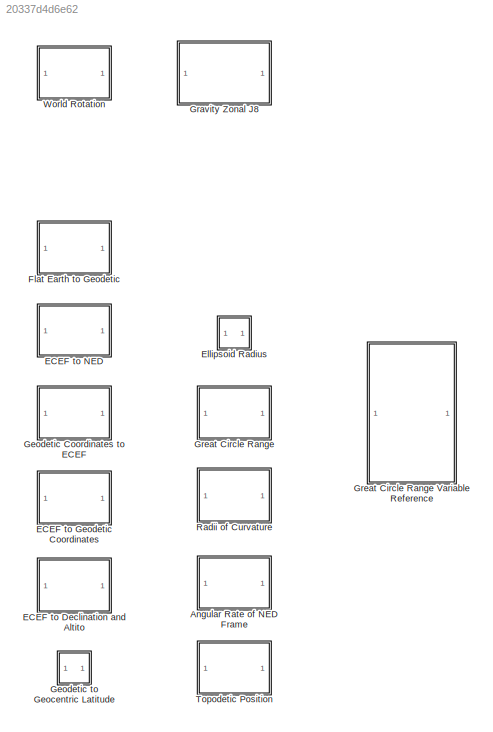
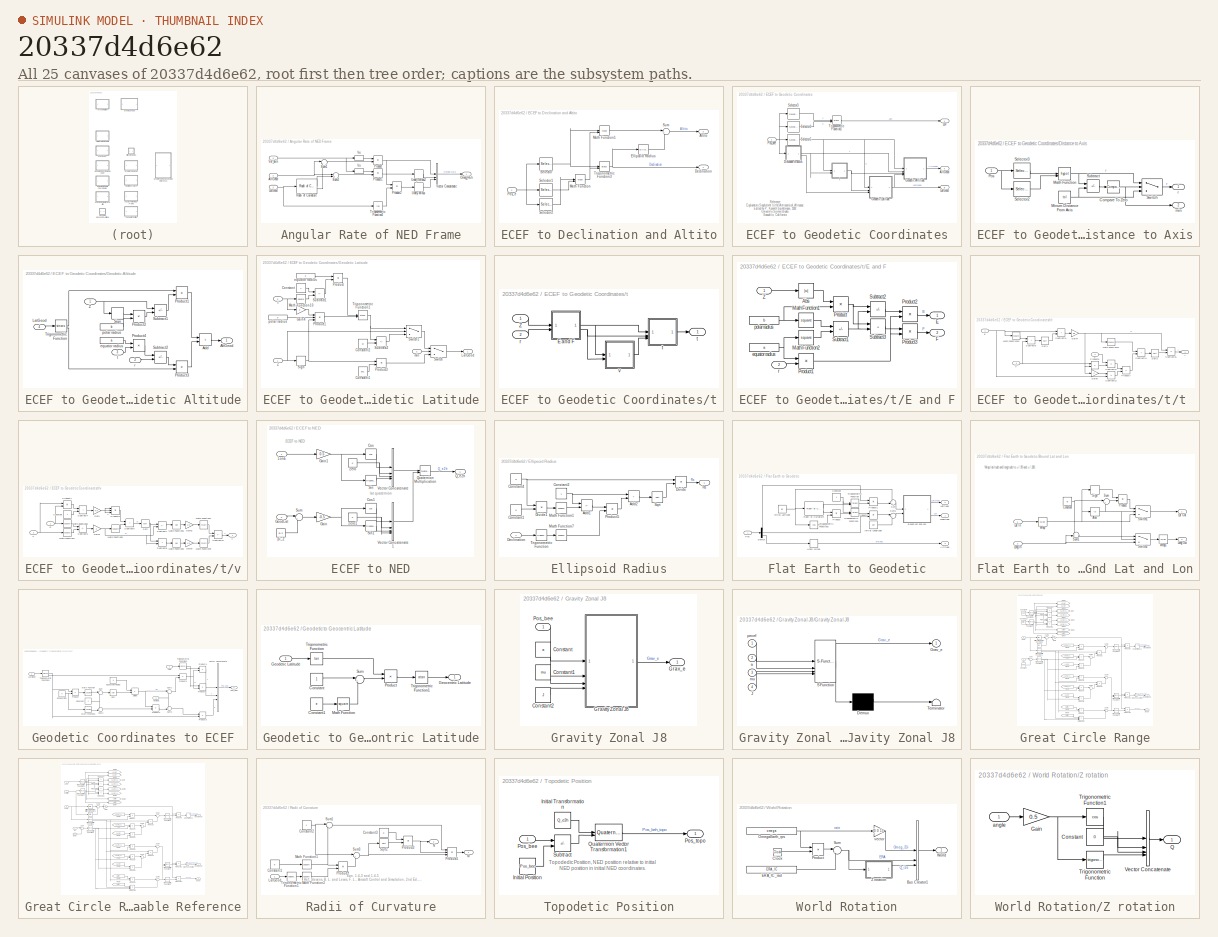
[diagram: thumbnail index - all 25 canvases of the model, root first then tree order]
MODEL slx_20337d4d6e62
KIND library
CONFIG AbsTol = auto
CONFIG EnableMultiTasking = on
CONFIG FixedStep = auto
CONFIG MaxStep = auto
CONFIG MinStep = auto
CONFIG RelTol = 1e-3
CONFIG SampleTimeConstraint = Unconstrained
CONFIG SolverName = ode45
CONFIG StartTime = 0.0
CONFIG StopTime = 10.0
BLOCK [SubSystem] Angular Rate of NED Frame
BLOCK [Inport] Angular Rate of NED Frame/AltGeod
  Port = 2
BLOCK [Inport] Angular Rate of NED Frame/LatGeod
BLOCK [Outport] Angular Rate of NED Frame/Omeg_HEh
  PortDimensions = [3,1]
BLOCK [Product] Angular Rate of NED Frame/Product
  Inputs = */
  RndMeth = Zero
BLOCK [Product] Angular Rate of NED Frame/Product1
  Inputs = */
  RndMeth = Zero
BLOCK [Product] Angular Rate of NED Frame/Product2
  RndMeth = Zero
BLOCK [Reference] Angular Rate of NED Frame/Radii of Curvature  REF=$bdroot/Radii of Curvature
  SourceBlock = $bdroot/Radii of Curvature
  SourceType = Radii of Curvature
BLOCK [Sum] Angular Rate of NED Frame/Sum1
  Inputs = |++
BLOCK [Sum] Angular Rate of NED Frame/Sum2
  Inputs = |++
BLOCK [Trigonometry] Angular Rate of NED Frame/Trigonometric Function2
  Operator = tan
BLOCK [UnaryMinus] Angular Rate of NED Frame/Unary Minus
BLOCK [UnaryMinus] Angular Rate of NED Frame/Unary Minus2
BLOCK [Selector] Angular Rate of NED Frame/Ve
  IndexOptions = Index vector (dialog),Select all
  Indices = 2,1
  InputPortWidth = 3
  NameLocation = top
  NumberOfDimensions = 2
  OutputSizes = 1,1
BLOCK [Concatenate] Angular Rate of NED Frame/Vector Concatenate
  Mode = Multidimensional array
  NumInputs = 3
BLOCK [Inport] Angular Rate of NED Frame/Vel_bEh
  Port = 3
BLOCK [Selector] Angular Rate of NED Frame/Vn
  IndexOptions = Index vector (dialog),Select all
  Indices = 1,1
  InputPortWidth = 3
  NameLocation = top
  NumberOfDimensions = 2
  OutputSizes = 1,1
BLOCK [SubSystem] ECEF to Declination and Altito
BLOCK [Outport] ECEF to Declination and Altito/Altito
  Port = 2
BLOCK [Outport] ECEF to Declination and Altito/Declination
BLOCK [Reference] ECEF to Declination and Altito/Ellipsoid Radius  REF=$bdroot/Ellipsoid Radius
  SourceBlock = $bdroot/Ellipsoid Radius
  SourceType = Ellipsoid radius
BLOCK [Math] ECEF to Declination and Altito/Math Function
  Operator = hypot
  SignedPower = on
BLOCK [Math] ECEF to Declination and Altito/Math Function1
  Operator = hypot
  SignedPower = on
BLOCK [Inport] ECEF to Declination and Altito/Pos_e
BLOCK [Selector] ECEF to Declination and Altito/Selector
  IndexOptions = Index vector (dialog)
  Indices = 3
  InputPortWidth = 3
  OutputSizes = 1
BLOCK [Selector] ECEF to Declination and Altito/Selector1
  IndexOptions = Index vector (dialog)
  Indices = 2
  InputPortWidth = 3
  OutputSizes = 1
BLOCK [Selector] ECEF to Declination and Altito/Selector2
  IndexOptions = Index vector (dialog)
  Indices = 1
  InputPortWidth = 3
  OutputSizes = 1
BLOCK [Sum] ECEF to Declination and Altito/Sum
  Inputs = |+-
BLOCK [Trigonometry] ECEF to Declination and Altito/Trigonometric Function3
  Operator = atan2
BLOCK [SubSystem] ECEF to Geodetic Coordinates
BLOCK [Outport] ECEF to Geodetic Coordinates/AltGeod
  Port = 3
BLOCK [SubSystem] ECEF to Geodetic Coordinates/Distance to Axis
BLOCK [Reference] ECEF to Geodetic Coordinates/Distance to Axis/Compare To Zero  REF=simulink/Logic and Bit
Operations/Compare
To Zero
  SourceBlock = simulink/Logic and Bit\nOperations/Compare\nTo Zero
  SourceType = Compare To Zero
BLOCK [Math] ECEF to Geodetic Coordinates/Distance to Axis/Math Function
  Operator = hypot
  SignedPower = on
BLOCK [Constant] ECEF to Geodetic Coordinates/Distance to Axis/Minum Distance From Axis
  Value = tol
BLOCK [Inport] ECEF to Geodetic Coordinates/Distance to Axis/Pos
BLOCK [Selector] ECEF to Geodetic Coordinates/Distance to Axis/Selector2
  IndexOptions = Index vector (dialog)
  Indices = 1
  InputPortWidth = 3
  OutputSizes = 1
BLOCK [Selector] ECEF to Geodetic Coordinates/Distance to Axis/Selector3
  IndexOptions = Index vector (dialog)
  Indices = 2
  InputPortWidth = 3
  OutputSizes = 1
BLOCK [Sum] ECEF to Geodetic Coordinates/Distance to Axis/Subtract
  IconShape = rectangular
  Inputs = +-
BLOCK [Switch] ECEF to Geodetic Coordinates/Distance to Axis/Switch
  Criteria = u2 ~= 0
  InputSameDT = off
  SaturateOnIntegerOverflow = off
  Threshold = 0.5
  ZeroCross = off
BLOCK [Outport] ECEF to Geodetic Coordinates/Distance to Axis/min
  Port = 2
BLOCK [Outport] ECEF to Geodetic Coordinates/Distance to Axis/r
BLOCK [SubSystem] ECEF to Geodetic Coordinates/Geodetic Altitude
BLOCK [Sum] ECEF to Geodetic Coordinates/Geodetic Altitude/Add
  IconShape = rectangular
BLOCK [Outport] ECEF to Geodetic Coordinates/Geodetic Altitude/AltGeod
BLOCK [Inport] ECEF to Geodetic Coordinates/Geodetic Altitude/LatGeod
  Port = 4
BLOCK [Product] ECEF to Geodetic Coordinates/Geodetic Altitude/Product1
  RndMeth = Zero
BLOCK [Product] ECEF to Geodetic Coordinates/Geodetic Altitude/Product2
  RndMeth = Zero
BLOCK [Product] ECEF to Geodetic Coordinates/Geodetic Altitude/Product3
  RndMeth = Zero
BLOCK [Product] ECEF to Geodetic Coordinates/Geodetic Altitude/Product4
  RndMeth = Zero
BLOCK [Signum] ECEF to Geodetic Coordinates/Geodetic Altitude/Sign
BLOCK [Sum] ECEF to Geodetic Coordinates/Geodetic Altitude/Subtract1
  IconShape = rectangular
  Inputs = +-
BLOCK [Sum] ECEF to Geodetic Coordinates/Geodetic Altitude/Subtract2
  IconShape = rectangular
  Inputs = -+
BLOCK [Trigonometry] ECEF to Geodetic Coordinates/Geodetic Altitude/Trigonometric Function
  Operator = sincos
BLOCK [Inport] ECEF to Geodetic Coordinates/Geodetic Altitude/Z
BLOCK [Constant] ECEF to Geodetic Coordinates/Geodetic Altitude/equator radius
  Value = a
BLOCK [Constant] ECEF to Geodetic Coordinates/Geodetic Altitude/polar radius
  Value = b
BLOCK [Inport] ECEF to Geodetic Coordinates/Geodetic Altitude/r
  Port = 2
BLOCK [Inport] ECEF to Geodetic Coordinates/Geodetic Altitude/t
  Port = 3
BLOCK [SubSystem] ECEF to Geodetic Coordinates/Geodetic Latitude
BLOCK [Constant] ECEF to Geodetic Coordinates/Geodetic Latitude/Constant
BLOCK [Constant] ECEF to Geodetic Coordinates/Geodetic Latitude/Constant1
  Value = pi/2
BLOCK [Constant] ECEF to Geodetic Coordinates/Geodetic Latitude/Constant2
  Value = pi
BLOCK [Gain] ECEF to Geodetic Coordinates/Geodetic Latitude/Gain4
  Gain = 2
BLOCK [Outport] ECEF to Geodetic Coordinates/Geodetic Latitude/LatGeod
BLOCK [Math] ECEF to Geodetic Coordinates/Geodetic Latitude/Math Function10
  Operator = square
  SignedPower = on
BLOCK [Product] ECEF to Geodetic Coordinates/Geodetic Latitude/Product
  RndMeth = Zero
BLOCK [Product] ECEF to Geodetic Coordinates/Geodetic Latitude/Product1
  Inputs = 3
  RndMeth = Zero
BLOCK [Product] ECEF to Geodetic Coordinates/Geodetic Latitude/Product3
  RndMeth = Zero
BLOCK [Signum] ECEF to Geodetic Coordinates/Geodetic Latitude/Sign
BLOCK [Sum] ECEF to Geodetic Coordinates/Geodetic Latitude/Subtract1
  IconShape = rectangular
  Inputs = +-
BLOCK [Sum] ECEF to Geodetic Coordinates/Geodetic Latitude/Subtract2
  IconShape = rectangular
  Inputs = +-
BLOCK [Switch] ECEF to Geodetic Coordinates/Geodetic Latitude/Switch
  Criteria = u2 ~= 0
  InputSameDT = off
  SaturateOnIntegerOverflow = off
  Threshold = 0.5
  ZeroCross = off
BLOCK [Switch] ECEF to Geodetic Coordinates/Geodetic Latitude/Switch1
  InputSameDT = off
  SaturateOnIntegerOverflow = off
  ZeroCross = off
BLOCK [Trigonometry] ECEF to Geodetic Coordinates/Geodetic Latitude/Trigonometric Function1
  Operator = atan2
BLOCK [Inport] ECEF to Geodetic Coordinates/Geodetic Latitude/Z
BLOCK [Constant] ECEF to Geodetic Coordinates/Geodetic Latitude/equator radius
  Value = a
BLOCK [Inport] ECEF to Geodetic Coordinates/Geodetic Latitude/min
  Port = 3
BLOCK [Constant] ECEF to Geodetic Coordinates/Geodetic Latitude/polar radius
  Value = b
BLOCK [Inport] ECEF to Geodetic Coordinates/Geodetic Latitude/t
  Port = 2
BLOCK [Outport] ECEF to Geodetic Coordinates/LatGeod
  Port = 2
BLOCK [Outport] ECEF to Geodetic Coordinates/Lon
BLOCK [Inport] ECEF to Geodetic Coordinates/Pos_bee
BLOCK [Selector] ECEF to Geodetic Coordinates/Selector2
  IndexOptions = Index vector (dialog)
  Indices = 1
  InputPortWidth = 3
  OutputSizes = 1
BLOCK [Selector] ECEF to Geodetic Coordinates/Selector3
  IndexOptions = Index vector (dialog)
  Indices = 2
  InputPortWidth = 3
  OutputSizes = 1
BLOCK [Selector] ECEF to Geodetic Coordinates/Selector5
  IndexOptions = Index vector (dialog)
  Indices = 3
  InputPortWidth = 3
  OutputSizes = 1
BLOCK [Trigonometry] ECEF to Geodetic Coordinates/Trigonometric Function1
  Operator = atan2
BLOCK [SubSystem] ECEF to Geodetic Coordinates/t
BLOCK [SubSystem] ECEF to Geodetic Coordinates/t/E and F
BLOCK [Abs] ECEF to Geodetic Coordinates/t/E and F/Abs
  SaturateOnIntegerOverflow = off
BLOCK [Outport] ECEF to Geodetic Coordinates/t/E and F/E
BLOCK [Outport] ECEF to Geodetic Coordinates/t/E and F/F
  Port = 2
BLOCK [Math] ECEF to Geodetic Coordinates/t/E and F/Math Function1
  Operator = square
  SignedPower = on
BLOCK [Math] ECEF to Geodetic Coordinates/t/E and F/Math Function2
  Operator = square
  SignedPower = on
BLOCK [Product] ECEF to Geodetic Coordinates/t/E and F/Product
  RndMeth = Zero
BLOCK [Product] ECEF to Geodetic Coordinates/t/E and F/Product1
  RndMeth = Zero
BLOCK [Product] ECEF to Geodetic Coordinates/t/E and F/Product2
  Inputs = */
  RndMeth = Zero
BLOCK [Product] ECEF to Geodetic Coordinates/t/E and F/Product3
  Inputs = */
  RndMeth = Zero
BLOCK [Sum] ECEF to Geodetic Coordinates/t/E and F/Subtract1
  IconShape = rectangular
  Inputs = -+
BLOCK [Sum] ECEF to Geodetic Coordinates/t/E and F/Subtract2
  IconShape = rectangular
  Inputs = +-
BLOCK [Sum] ECEF to Geodetic Coordinates/t/E and F/Subtract3
  IconShape = rectangular
BLOCK [Inport] ECEF to Geodetic Coordinates/t/E and F/Z
BLOCK [Constant] ECEF to Geodetic Coordinates/t/E and F/equator radius
  Value = a
BLOCK [Constant] ECEF to Geodetic Coordinates/t/E and F/polar radius
  Value = b
BLOCK [Inport] ECEF to Geodetic Coordinates/t/E and F/r
  Port = 2
BLOCK [Inport] ECEF to Geodetic Coordinates/t/Z
BLOCK [Inport] ECEF to Geodetic Coordinates/t/r
  Port = 2
BLOCK [Outport] ECEF to Geodetic Coordinates/t/t
BLOCK [SubSystem] ECEF to Geodetic Coordinates/t/t 
BLOCK [Inport] ECEF to Geodetic Coordinates/t/t /E
BLOCK [Inport] ECEF to Geodetic Coordinates/t/t /F
  Port = 2
BLOCK [Gain] ECEF to Geodetic Coordinates/t/t /Gain4
  Gain = 0.5
BLOCK [Gain] ECEF to Geodetic Coordinates/t/t /Gain5
  Gain = 2
BLOCK [Math] ECEF to Geodetic Coordinates/t/t /Math Function10
  Operator = square
  SignedPower = on
BLOCK [Math] ECEF to Geodetic Coordinates/t/t /Math Function11
  Operator = square
  SignedPower = on
BLOCK [Product] ECEF to Geodetic Coordinates/t/t /Product6
  RndMeth = Zero
BLOCK [Product] ECEF to Geodetic Coordinates/t/t /Product7
  Inputs = */
  RndMeth = Zero
BLOCK [Sqrt] ECEF to Geodetic Coordinates/t/t /Sqrt1
BLOCK [Sqrt] ECEF to Geodetic Coordinates/t/t /Sqrt2
BLOCK [Sum] ECEF to Geodetic Coordinates/t/t /Subtract11
  IconShape = rectangular
BLOCK [Sum] ECEF to Geodetic Coordinates/t/t /Subtract12
  IconShape = rectangular
  Inputs = +-
BLOCK [Sum] ECEF to Geodetic Coordinates/t/t /Subtract13
  IconShape = rectangular
  Inputs = +-
BLOCK [Sum] ECEF to Geodetic Coordinates/t/t /Subtract14
  IconShape = rectangular
BLOCK [Sum] ECEF to Geodetic Coordinates/t/t /Subtract15
  IconShape = rectangular
  Inputs = -+
BLOCK [Sum] ECEF to Geodetic Coordinates/t/t /Subtract9
  IconShape = rectangular
BLOCK [Outport] ECEF to Geodetic Coordinates/t/t /t
BLOCK [Inport] ECEF to Geodetic Coordinates/t/t /v
  Port = 3
BLOCK [SubSystem] ECEF to Geodetic Coordinates/t/v
BLOCK [Constant] ECEF to Geodetic Coordinates/t/v/Constant
BLOCK [Inport] ECEF to Geodetic Coordinates/t/v/E
BLOCK [Inport] ECEF to Geodetic Coordinates/t/v/F
  Port = 2
BLOCK [Gain] ECEF to Geodetic Coordinates/t/v/Gain
  Gain = 4/3
BLOCK [Gain] ECEF to Geodetic Coordinates/t/v/Gain1
  Gain = 2
BLOCK [Gain] ECEF to Geodetic Coordinates/t/v/Gain2
  Gain = 1/3
BLOCK [Gain] ECEF to Geodetic Coordinates/t/v/Gain3
  Gain = 1/3
BLOCK [Math] ECEF to Geodetic Coordinates/t/v/Math Function3
  Operator = square
  SignedPower = on
BLOCK [Math] ECEF to Geodetic Coordinates/t/v/Math Function4
  Operator = square
  SignedPower = on
BLOCK [Math] ECEF to Geodetic Coordinates/t/v/Math Function5
  Operator = square
  SignedPower = on
BLOCK [Math] ECEF to Geodetic Coordinates/t/v/Math Function6
  Operator = log
  SignedPower = on
BLOCK [Math] ECEF to Geodetic Coordinates/t/v/Math Function7
  SignedPower = on
BLOCK [Math] ECEF to Geodetic Coordinates/t/v/Math Function8
  Operator = log
  SignedPower = on
BLOCK [Math] ECEF to Geodetic Coordinates/t/v/Math Function9
  SignedPower = on
BLOCK [Product] ECEF to Geodetic Coordinates/t/v/Product4
  RndMeth = Zero
BLOCK [Product] ECEF to Geodetic Coordinates/t/v/Product5
  Inputs = 3
  RndMeth = Zero
BLOCK [Sqrt] ECEF to Geodetic Coordinates/t/v/Sqrt
BLOCK [Sum] ECEF to Geodetic Coordinates/t/v/Subtract10
  IconShape = rectangular
  Inputs = +-
BLOCK [Sum] ECEF to Geodetic Coordinates/t/v/Subtract4
  IconShape = rectangular
BLOCK [Sum] ECEF to Geodetic Coordinates/t/v/Subtract5
  IconShape = rectangular
  Inputs = +-
BLOCK [Sum] ECEF to Geodetic Coordinates/t/v/Subtract6
  IconShape = rectangular
BLOCK [Sum] ECEF to Geodetic Coordinates/t/v/Subtract7
  IconShape = rectangular
  Inputs = +-
BLOCK [Sum] ECEF to Geodetic Coordinates/t/v/Subtract8
  IconShape = rectangular
BLOCK [Outport] ECEF to Geodetic Coordinates/t/v/v
BLOCK [SubSystem] ECEF to NED
BLOCK [Trigonometry] ECEF to NED/Cos
  Operator = cos
BLOCK [Trigonometry] ECEF to NED/Cos1
  Operator = cos
BLOCK [Gain] ECEF to NED/Gain
  Gain = -0.5
BLOCK [Gain] ECEF to NED/Gain1
  Gain = 0.5
BLOCK [Inport] ECEF to NED/GeodLat
  Port = 2
BLOCK [Inport] ECEF to NED/LonE
BLOCK [Outport] ECEF to NED/Q_e2h
BLOCK [Reference] ECEF to NED/Quaternion Multiplication  REF=starslibMathOperations/Quaternion Multiplication
  SourceBlock = starslibMathOperations/Quaternion Multiplication
  SourceType = Quaternion Multiplication (1-D)
BLOCK [Trigonometry] ECEF to NED/Sin
BLOCK [Trigonometry] ECEF to NED/Sin1
BLOCK [Sum] ECEF to NED/Sum
  Inputs = |++
BLOCK [Concatenate] ECEF to NED/Vector Concatenate
  Mode = Multidimensional array
  NumInputs = 4
BLOCK [Concatenate] ECEF to NED/Vector Concatenate1
  Mode = Multidimensional array
  NumInputs = 4
BLOCK [Constant] ECEF to NED/pi_2
  Value = pi/2
BLOCK [Constant] ECEF to NED/zero
  Value = 0
BLOCK [Constant] ECEF to NED/zero1
  Value = 0
BLOCK [SubSystem] Ellipsoid Radius
BLOCK [Sum] Ellipsoid Radius/Add1
  IconShape = rectangular
  Inputs = -+
BLOCK [Sum] Ellipsoid Radius/Add2
  IconShape = rectangular
BLOCK [Constant] Ellipsoid Radius/Constant1
  Value = b
BLOCK [Constant] Ellipsoid Radius/Constant2
BLOCK [Constant] Ellipsoid Radius/Constant4
  Value = a
BLOCK [Inport] Ellipsoid Radius/Declination
BLOCK [Product] Ellipsoid Radius/Divide
  Inputs = */
BLOCK [Product] Ellipsoid Radius/Divide1
  Inputs = */
BLOCK [Math] Ellipsoid Radius/Math Function1
  Operator = square
  SignedPower = on
BLOCK [Math] Ellipsoid Radius/Math Function7
  Operator = square
  SignedPower = on
BLOCK [Product] Ellipsoid Radius/Product5
  RndMeth = Zero
BLOCK [Outport] Ellipsoid Radius/Rs
BLOCK [Sqrt] Ellipsoid Radius/Sqrt
BLOCK [Trigonometry] Ellipsoid Radius/Trigonometric Function
BLOCK [SubSystem] Flat Earth to Geodetic
BLOCK [Outport] Flat Earth to Geodetic/Altitude
  Port = 3
BLOCK [SubSystem] Flat Earth to Geodetic/Bound Lat and Lon
BLOCK [Abs] Flat Earth to Geodetic/Bound Lat and Lon/Abs
  SaturateOnIntegerOverflow = off
BLOCK [Constant] Flat Earth to Geodetic/Bound Lat and Lon/Constant
  Value = pi
BLOCK [Inport] Flat Earth to Geodetic/Bound Lat and Lon/Lat In
BLOCK [Outport] Flat Earth to Geodetic/Bound Lat and Lon/Lat Out
BLOCK [Inport] Flat Earth to Geodetic/Bound Lat and Lon/Long In
  Port = 2
BLOCK [Outport] Flat Earth to Geodetic/Bound Lat and Lon/Long Out
  Port = 2
BLOCK [Product] Flat Earth to Geodetic/Bound Lat and Lon/Product
  RndMeth = Zero
BLOCK [Signum] Flat Earth to Geodetic/Bound Lat and Lon/Sign
BLOCK [Sum] Flat Earth to Geodetic/Bound Lat and Lon/Sum
  Inputs = |+-
BLOCK [Sum] Flat Earth to Geodetic/Bound Lat and Lon/Sum1
  Inputs = ++|
BLOCK [Switch] Flat Earth to Geodetic/Bound Lat and Lon/Switch1
  Criteria = u2 > Threshold
  InputSameDT = off
  SaturateOnIntegerOverflow = off
  Threshold = pi/2
BLOCK [Switch] Flat Earth to Geodetic/Bound Lat and Lon/Switch2
  Criteria = u2 > Threshold
  InputSameDT = off
  SaturateOnIntegerOverflow = off
  Threshold = pi/2
BLOCK [Reference] Flat Earth to Geodetic/Bound Lat and Lon/Wrap  REF=starslibMathOperations/Wrap
  SourceBlock = starslibMathOperations/Wrap
  SourceType = Wrap Input
BLOCK [Reference] Flat Earth to Geodetic/Bound Lat and Lon/Wrap1  REF=starslibMathOperations/Wrap
  SourceBlock = starslibMathOperations/Wrap
  SourceType = Wrap Input
BLOCK [Constant] Flat Earth to Geodetic/Constant
BLOCK [Demux] Flat Earth to Geodetic/Demux
  Outputs = 3
BLOCK [Constant] Flat Earth to Geodetic/Initial Latitude
  Value = lat
BLOCK [Constant] Flat Earth to Geodetic/Initial Longitude
  Value = lon
BLOCK [Outport] Flat Earth to Geodetic/Latitude
  Port = 2
BLOCK [Outport] Flat Earth to Geodetic/Longitude
BLOCK [Inport] Flat Earth to Geodetic/Pos
BLOCK [Product] Flat Earth to Geodetic/Product
  RndMeth = Zero
BLOCK [Product] Flat Earth to Geodetic/Product1
  RndMeth = Zero
BLOCK [Product] Flat Earth to Geodetic/Product2
  RndMeth = Zero
BLOCK [Reference] Flat Earth to Geodetic/Radii of Curvature  REF=$bdroot/Radii of Curvature
  SourceBlock = $bdroot/Radii of Curvature
  SourceType = Radii of Curvature
BLOCK [Sum] Flat Earth to Geodetic/Sum
  Inputs = ++|
BLOCK [Sum] Flat Earth to Geodetic/Sum1
  Inputs = |++
BLOCK [Trigonometry] Flat Earth to Geodetic/Trigonometric Function
  Operator = atan2
BLOCK [Trigonometry] Flat Earth to Geodetic/Trigonometric Function1
  Operator = atan2
BLOCK [Trigonometry] Flat Earth to Geodetic/Trigonometric Function2
  Operator = cos
BLOCK [UnaryMinus] Flat Earth to Geodetic/Unary Minus
BLOCK [SubSystem] Geodetic Coordinates to ECEF
BLOCK [Inport] Geodetic Coordinates to ECEF/AltGeod
  Port = 3
BLOCK [Constant] Geodetic Coordinates to ECEF/Constant
BLOCK [Product] Geodetic Coordinates to ECEF/Divide
  Inputs = */
BLOCK [Constant] Geodetic Coordinates to ECEF/Eccentricity
  Value = e
BLOCK [Constant] Geodetic Coordinates to ECEF/Equatorial Radius
  Value = a
BLOCK [Inport] Geodetic Coordinates to ECEF/LatGeod
  Port = 2
BLOCK [Inport] Geodetic Coordinates to ECEF/Lon
BLOCK [Math] Geodetic Coordinates to ECEF/Math Function
  Operator = square
  SignedPower = on
BLOCK [Math] Geodetic Coordinates to ECEF/Math Function1
  Operator = square
  SignedPower = on
BLOCK [Outport] Geodetic Coordinates to ECEF/Pos_bee
BLOCK [Product] Geodetic Coordinates to ECEF/Product
  RndMeth = Zero
BLOCK [Product] Geodetic Coordinates to ECEF/Product1
  RndMeth = Zero
BLOCK [Product] Geodetic Coordinates to ECEF/Product2
  RndMeth = Zero
BLOCK [Product] Geodetic Coordinates to ECEF/Product3
  RndMeth = Zero
BLOCK [Product] Geodetic Coordinates to ECEF/Product4
  RndMeth = Zero
BLOCK [Product] Geodetic Coordinates to ECEF/Product5
  RndMeth = Zero
BLOCK [Sqrt] Geodetic Coordinates to ECEF/Sqrt
BLOCK [Sum] Geodetic Coordinates to ECEF/Sum
  Inputs = |-+
BLOCK [Sum] Geodetic Coordinates to ECEF/Sum1
  Inputs = |++
BLOCK [Sum] Geodetic Coordinates to ECEF/Sum2
  Inputs = +-|
BLOCK [Sum] Geodetic Coordinates to ECEF/Sum3
  Inputs = ++|
BLOCK [Trigonometry] Geodetic Coordinates to ECEF/Trigonometric Function1
  Operator = sincos
BLOCK [Trigonometry] Geodetic Coordinates to ECEF/Trigonometric Function2
  Operator = sincos
BLOCK [Concatenate] Geodetic Coordinates to ECEF/Vector Concatenate
  Mode = Multidimensional array
  NumInputs = 3
BLOCK [SubSystem] Geodetic to Geocentric Latitude
BLOCK [Constant] Geodetic to Geocentric Latitude/Constant
BLOCK [Constant] Geodetic to Geocentric Latitude/Constant1
  Value = e
BLOCK [Outport] Geodetic to Geocentric Latitude/Geocentric Latitude
BLOCK [Inport] Geodetic to Geocentric Latitude/Geodetic Latitude
BLOCK [Math] Geodetic to Geocentric Latitude/Math Function
  Operator = square
  SignedPower = on
BLOCK [Product] Geodetic to Geocentric Latitude/Product
BLOCK [Sum] Geodetic to Geocentric Latitude/Sum
  Inputs = |+-
BLOCK [Trigonometry] Geodetic to Geocentric Latitude/Trigonometric Function
  Operator = tan
BLOCK [Trigonometry] Geodetic to Geocentric Latitude/Trigonometric Function1
  Operator = atan
BLOCK [SubSystem] Gravity Zonal J8
BLOCK [Constant] Gravity Zonal J8/Constant
  Value = a
BLOCK [Constant] Gravity Zonal J8/Constant1
  Value = mu
BLOCK [Constant] Gravity Zonal J8/Constant2
  Value = J
BLOCK [Outport] Gravity Zonal J8/Grav_e
BLOCK [SubSystem] Gravity Zonal J8/Gravity Zonal J8
  ErrorFcn = Stateflow.Translate.translate
  PermitHierarchicalResolution = ExplicitOnly
  SFBlockType = MATLAB Function
  TreatAsAtomicUnit = on
BLOCK [Demux] Gravity Zonal J8/Gravity Zonal J8/ Demux 
  Outputs = 1
BLOCK [S-Function] Gravity Zonal J8/Gravity Zonal J8/ SFunction 
  EnableBusSupport = off
  FunctionName = sf_sfun
  PortCounts = [4 2]
  SFcnIsStateOwnerBlock = off
  SFunctionDeploymentMode = off
  Tag = Stateflow S-Function 14
BLOCK [Terminator] Gravity Zonal J8/Gravity Zonal J8/ Terminator 
BLOCK [Outport] Gravity Zonal J8/Gravity Zonal J8/Grav_e
BLOCK [Inport] Gravity Zonal J8/Gravity Zonal J8/J
  Port = 4
BLOCK [Inport] Gravity Zonal J8/Gravity Zonal J8/a
  Port = 2
BLOCK [Inport] Gravity Zonal J8/Gravity Zonal J8/mu
  Port = 3
BLOCK [Inport] Gravity Zonal J8/Gravity Zonal J8/pecef
BLOCK [Inport] Gravity Zonal J8/Pos_bee
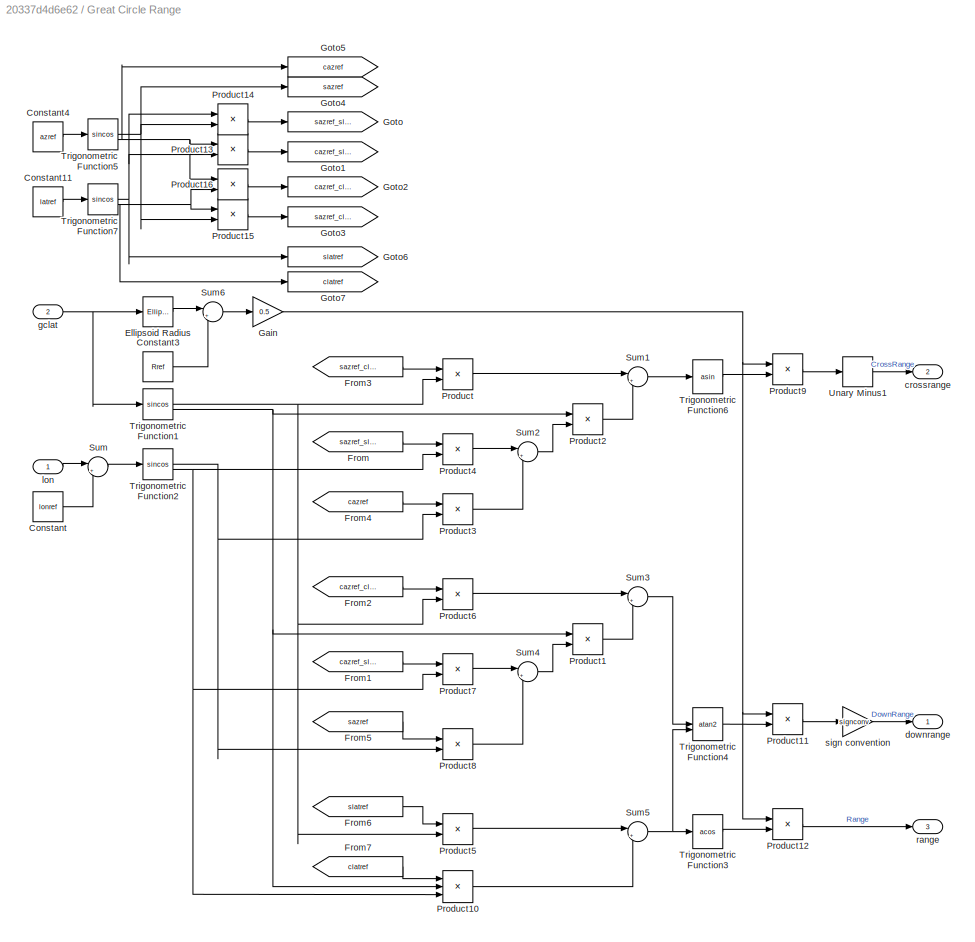
BLOCK [SubSystem] Great Circle Range
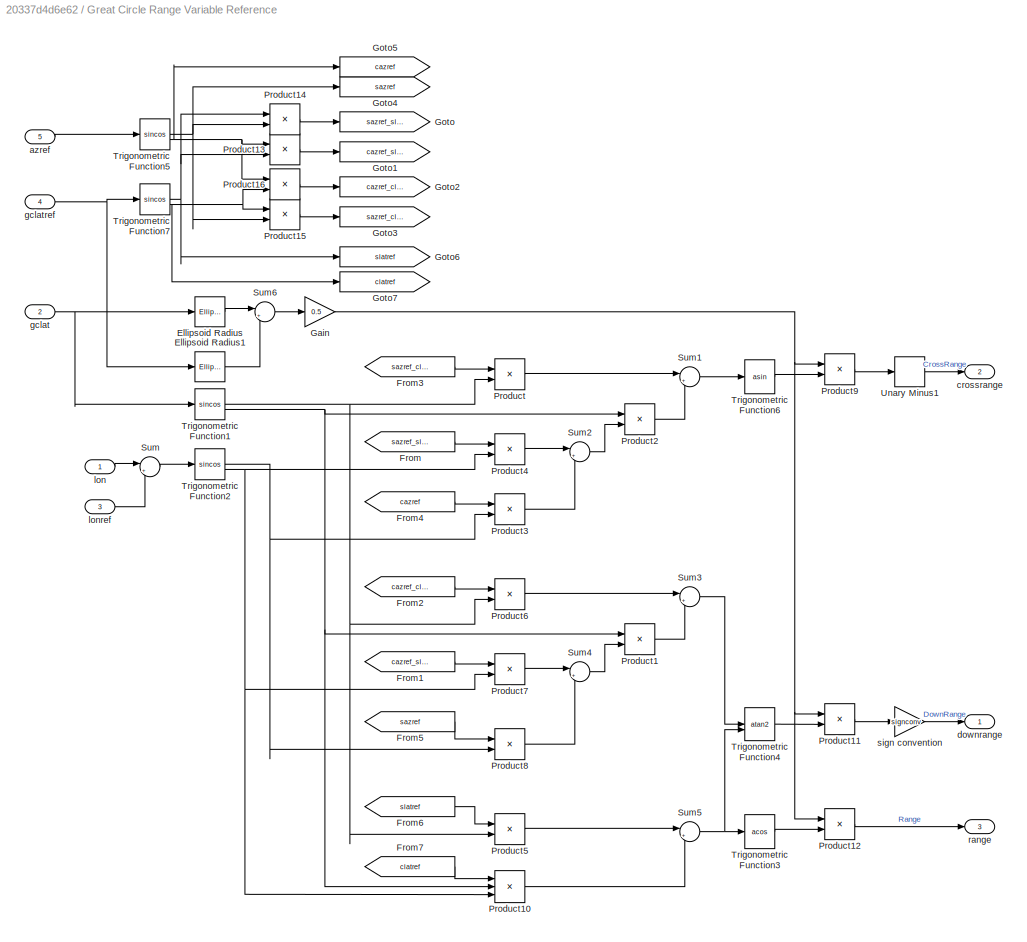
BLOCK [SubSystem] Great Circle Range Variable Reference
BLOCK [Reference] Great Circle Range Variable Reference/Ellipsoid Radius  REF=$bdroot/Ellipsoid Radius
  SourceBlock = $bdroot/Ellipsoid Radius
  SourceType = Ellipsoid radius
BLOCK [Reference] Great Circle Range Variable Reference/Ellipsoid Radius1  REF=$bdroot/Ellipsoid Radius
  SourceBlock = $bdroot/Ellipsoid Radius
  SourceType = Ellipsoid radius
BLOCK [From] Great Circle Range Variable Reference/From
  GotoTag = sazref_slatref
BLOCK [From] Great Circle Range Variable Reference/From1
  GotoTag = cazref_slatref
BLOCK [From] Great Circle Range Variable Reference/From2
  GotoTag = cazref_clatref
BLOCK [From] Great Circle Range Variable Reference/From3
  GotoTag = sazref_clatref
BLOCK [From] Great Circle Range Variable Reference/From4
  GotoTag = cazref
BLOCK [From] Great Circle Range Variable Reference/From5
  GotoTag = sazref
BLOCK [From] Great Circle Range Variable Reference/From6
  GotoTag = slatref
BLOCK [From] Great Circle Range Variable Reference/From7
  GotoTag = clatref
BLOCK [Gain] Great Circle Range Variable Reference/Gain
  Gain = 0.5
BLOCK [Goto] Great Circle Range Variable Reference/Goto
  GotoTag = sazref_slatref
BLOCK [Goto] Great Circle Range Variable Reference/Goto1
  GotoTag = cazref_slatref
BLOCK [Goto] Great Circle Range Variable Reference/Goto2
  GotoTag = cazref_clatref
BLOCK [Goto] Great Circle Range Variable Reference/Goto3
  GotoTag = sazref_clatref
BLOCK [Goto] Great Circle Range Variable Reference/Goto4
  GotoTag = sazref
BLOCK [Goto] Great Circle Range Variable Reference/Goto5
  GotoTag = cazref
BLOCK [Goto] Great Circle Range Variable Reference/Goto6
  GotoTag = slatref
BLOCK [Goto] Great Circle Range Variable Reference/Goto7
  GotoTag = clatref
BLOCK [Product] Great Circle Range Variable Reference/Product
  RndMeth = Zero
BLOCK [Product] Great Circle Range Variable Reference/Product1
  RndMeth = Zero
BLOCK [Product] Great Circle Range Variable Reference/Product10
  Inputs = 3
  RndMeth = Zero
BLOCK [Product] Great Circle Range Variable Reference/Product11
  RndMeth = Zero
BLOCK [Product] Great Circle Range Variable Reference/Product12
  RndMeth = Zero
BLOCK [Product] Great Circle Range Variable Reference/Product13
  RndMeth = Zero
BLOCK [Product] Great Circle Range Variable Reference/Product14
  RndMeth = Zero
BLOCK [Product] Great Circle Range Variable Reference/Product15
  RndMeth = Zero
BLOCK [Product] Great Circle Range Variable Reference/Product16
  RndMeth = Zero
BLOCK [Product] Great Circle Range Variable Reference/Product2
  RndMeth = Zero
BLOCK [Product] Great Circle Range Variable Reference/Product3
  RndMeth = Zero
BLOCK [Product] Great Circle Range Variable Reference/Product4
  RndMeth = Zero
BLOCK [Product] Great Circle Range Variable Reference/Product5
  RndMeth = Zero
BLOCK [Product] Great Circle Range Variable Reference/Product6
  RndMeth = Zero
BLOCK [Product] Great Circle Range Variable Reference/Product7
  RndMeth = Zero
BLOCK [Product] Great Circle Range Variable Reference/Product8
  RndMeth = Zero
BLOCK [Product] Great Circle Range Variable Reference/Product9
  RndMeth = Zero
BLOCK [Sum] Great Circle Range Variable Reference/Sum
  Inputs = |+-
BLOCK [Sum] Great Circle Range Variable Reference/Sum1
  Inputs = |+-
BLOCK [Sum] Great Circle Range Variable Reference/Sum2
  Inputs = |++
BLOCK [Sum] Great Circle Range Variable Reference/Sum3
  Inputs = |+-
BLOCK [Sum] Great Circle Range Variable Reference/Sum4
  Inputs = |+-
BLOCK [Sum] Great Circle Range Variable Reference/Sum5
  Inputs = |++
BLOCK [Sum] Great Circle Range Variable Reference/Sum6
  Inputs = |++
BLOCK [Trigonometry] Great Circle Range Variable Reference/Trigonometric Function1
  Operator = sincos
BLOCK [Trigonometry] Great Circle Range Variable Reference/Trigonometric Function2
  Operator = sincos
BLOCK [Trigonometry] Great Circle Range Variable Reference/Trigonometric Function3
  Operator = acos
BLOCK [Trigonometry] Great Circle Range Variable Reference/Trigonometric Function4
  Operator = atan2
BLOCK [Trigonometry] Great Circle Range Variable Reference/Trigonometric Function5
  Operator = sincos
BLOCK [Trigonometry] Great Circle Range Variable Reference/Trigonometric Function6
  Operator = asin
BLOCK [Trigonometry] Great Circle Range Variable Reference/Trigonometric Function7
  Operator = sincos
BLOCK [UnaryMinus] Great Circle Range Variable Reference/Unary Minus1
BLOCK [Inport] Great Circle Range Variable Reference/azref
  Port = 5
BLOCK [Outport] Great Circle Range Variable Reference/crossrange
  Port = 2
BLOCK [Outport] Great Circle Range Variable Reference/downrange
BLOCK [Inport] Great Circle Range Variable Reference/gclat
  Port = 2
BLOCK [Inport] Great Circle Range Variable Reference/gclatref
  Port = 4
BLOCK [Inport] Great Circle Range Variable Reference/lon
BLOCK [Inport] Great Circle Range Variable Reference/lonref
  Port = 3
BLOCK [Outport] Great Circle Range Variable Reference/range
  Port = 3
BLOCK [Gain] Great Circle Range Variable Reference/sign convention
  Gain = signconv
BLOCK [Constant] Great Circle Range/Constant
  Value = lonref
BLOCK [Constant] Great Circle Range/Constant11
  Value = latref
BLOCK [Constant] Great Circle Range/Constant3
  Value = Rref
BLOCK [Constant] Great Circle Range/Constant4
  Value = azref
BLOCK [Reference] Great Circle Range/Ellipsoid Radius  REF=$bdroot/Ellipsoid Radius
  SourceBlock = $bdroot/Ellipsoid Radius
  SourceType = Ellipsoid radius
BLOCK [From] Great Circle Range/From
  GotoTag = sazref_slatref
BLOCK [From] Great Circle Range/From1
  GotoTag = cazref_slatref
BLOCK [From] Great Circle Range/From2
  GotoTag = cazref_clatref
BLOCK [From] Great Circle Range/From3
  GotoTag = sazref_clatref
BLOCK [From] Great Circle Range/From4
  GotoTag = cazref
BLOCK [From] Great Circle Range/From5
  GotoTag = sazref
BLOCK [From] Great Circle Range/From6
  GotoTag = slatref
BLOCK [From] Great Circle Range/From7
  GotoTag = clatref
BLOCK [Gain] Great Circle Range/Gain
  Gain = 0.5
BLOCK [Goto] Great Circle Range/Goto
  GotoTag = sazref_slatref
BLOCK [Goto] Great Circle Range/Goto1
  GotoTag = cazref_slatref
BLOCK [Goto] Great Circle Range/Goto2
  GotoTag = cazref_clatref
BLOCK [Goto] Great Circle Range/Goto3
  GotoTag = sazref_clatref
BLOCK [Goto] Great Circle Range/Goto4
  GotoTag = sazref
BLOCK [Goto] Great Circle Range/Goto5
  GotoTag = cazref
BLOCK [Goto] Great Circle Range/Goto6
  GotoTag = slatref
BLOCK [Goto] Great Circle Range/Goto7
  GotoTag = clatref
BLOCK [Product] Great Circle Range/Product
  RndMeth = Zero
BLOCK [Product] Great Circle Range/Product1
  RndMeth = Zero
BLOCK [Product] Great Circle Range/Product10
  Inputs = 3
  RndMeth = Zero
BLOCK [Product] Great Circle Range/Product11
  RndMeth = Zero
BLOCK [Product] Great Circle Range/Product12
  RndMeth = Zero
BLOCK [Product] Great Circle Range/Product13
  RndMeth = Zero
BLOCK [Product] Great Circle Range/Product14
  RndMeth = Zero
BLOCK [Product] Great Circle Range/Product15
  RndMeth = Zero
BLOCK [Product] Great Circle Range/Product16
  RndMeth = Zero
BLOCK [Product] Great Circle Range/Product2
  RndMeth = Zero
BLOCK [Product] Great Circle Range/Product3
  RndMeth = Zero
BLOCK [Product] Great Circle Range/Product4
  RndMeth = Zero
BLOCK [Product] Great Circle Range/Product5
  RndMeth = Zero
BLOCK [Product] Great Circle Range/Product6
  RndMeth = Zero
BLOCK [Product] Great Circle Range/Product7
  RndMeth = Zero
BLOCK [Product] Great Circle Range/Product8
  RndMeth = Zero
BLOCK [Product] Great Circle Range/Product9
  RndMeth = Zero
BLOCK [Sum] Great Circle Range/Sum
  Inputs = |+-
BLOCK [Sum] Great Circle Range/Sum1
  Inputs = |+-
BLOCK [Sum] Great Circle Range/Sum2
  Inputs = |++
BLOCK [Sum] Great Circle Range/Sum3
  Inputs = |+-
BLOCK [Sum] Great Circle Range/Sum4
  Inputs = |+-
BLOCK [Sum] Great Circle Range/Sum5
  Inputs = |++
BLOCK [Sum] Great Circle Range/Sum6
  Inputs = |++
BLOCK [Trigonometry] Great Circle Range/Trigonometric Function1
  Operator = sincos
BLOCK [Trigonometry] Great Circle Range/Trigonometric Function2
  Operator = sincos
BLOCK [Trigonometry] Great Circle Range/Trigonometric Function3
  Operator = acos
BLOCK [Trigonometry] Great Circle Range/Trigonometric Function4
  Operator = atan2
BLOCK [Trigonometry] Great Circle Range/Trigonometric Function5
  Operator = sincos
BLOCK [Trigonometry] Great Circle Range/Trigonometric Function6
  Operator = asin
BLOCK [Trigonometry] Great Circle Range/Trigonometric Function7
  Operator = sincos
BLOCK [UnaryMinus] Great Circle Range/Unary Minus1
BLOCK [Outport] Great Circle Range/crossrange
  Port = 2
BLOCK [Outport] Great Circle Range/downrange
BLOCK [Inport] Great Circle Range/gclat
  Port = 2
BLOCK [Inport] Great Circle Range/lon
BLOCK [Outport] Great Circle Range/range
  Port = 3
BLOCK [Gain] Great Circle Range/sign convention
  Gain = signconv
BLOCK [SubSystem] Radii of Curvature
BLOCK [Constant] Radii of Curvature/Constant1
  Value = e
BLOCK [Constant] Radii of Curvature/Constant2
BLOCK [Constant] Radii of Curvature/Constant3
  Value = a
BLOCK [Inport] Radii of Curvature/LatGeod
BLOCK [Outport] Radii of Curvature/M
BLOCK [Math] Radii of Curvature/Math Function1
  Operator = square
  SignedPower = on
BLOCK [Math] Radii of Curvature/Math Function2
  Operator = square
  SignedPower = on
BLOCK [Outport] Radii of Curvature/N
  Port = 2
BLOCK [Product] Radii of Curvature/Product3
  Inputs = */
  RndMeth = Zero
BLOCK [Product] Radii of Curvature/Product4
  RndMeth = Zero
BLOCK [Product] Radii of Curvature/Product5
  Inputs = **/
  RndMeth = Zero
BLOCK [Sqrt] Radii of Curvature/Sqrt2
BLOCK [Sum] Radii of Curvature/Sum1
  Inputs = |+-
BLOCK [Sum] Radii of Curvature/Sum3
  Inputs = |+-
BLOCK [Trigonometry] Radii of Curvature/Trigonometric Function1
BLOCK [SubSystem] Topodetic Position
BLOCK [Constant] Topodetic Position/Initial Position
  Value = Pos_bee
  VectorParams1D = off
BLOCK [Constant] Topodetic Position/Initial Transformation
  NameLocation = top
  Value = Q_e2h
  VectorParams1D = off
BLOCK [Inport] Topodetic Position/Pos_bee
BLOCK [Outport] Topodetic Position/Pos_topo
BLOCK [Reference] Topodetic Position/Quaternion Vector Transformation1  REF=starslibAxisTransformations/Quaternion Vector Transformation
  SourceBlock = starslibAxisTransformations/Quaternion Vector Transformation
  SourceType = Quaterion Transformation of Vector (1-D)
BLOCK [Sum] Topodetic Position/Subtract
  IconShape = rectangular
  Inputs = +-
BLOCK [SubSystem] World Rotation
BLOCK [BusCreator] World Rotation/Bus Creator1
  DisplayOption = bar
  InheritFromInputs = on
  Inputs = 3
BLOCK [Clock] World Rotation/Clock
BLOCK [Constant] World Rotation/ERA_IC_rad
  Value = ERA_IC
BLOCK [Constant] World Rotation/OmegaEarth_rps
  Value = omega
BLOCK [Product] World Rotation/Product
  RndMeth = Zero
BLOCK [Sum] World Rotation/Sum
  Inputs = |++
BLOCK [Outport] World Rotation/World
BLOCK [SubSystem] World Rotation/Z rotation
BLOCK [Constant] World Rotation/Z rotation/Constant
  Value = 0
BLOCK [Gain] World Rotation/Z rotation/Gain
  Gain = 0.5
BLOCK [Outport] World Rotation/Z rotation/Q
  PortDimensions = [4,1]
BLOCK [Trigonometry] World Rotation/Z rotation/Trigonometric Function
BLOCK [Trigonometry] World Rotation/Z rotation/Trigonometric Function1
  Operator = cos
BLOCK [Concatenate] World Rotation/Z rotation/Vector Concatenate
  Mode = Multidimensional array
  NumInputs = 4
BLOCK [Inport] World Rotation/Z rotation/angle
BLOCK [Gain] World Rotation/vector
  Gain = [0 0 1]'
ANNOTATION ECEF to Geodetic Coordinates: Reference: Explanatory Supplement to the Astronomical Almanac Edited by P. Kenneth Seidelmann, 1992 University Science Books Sausalito, California
ANNOTATION ECEF to NED: ECEF to NED
ANNOTATION ECEF to NED: lat quaternion
ANNOTATION Flat Earth to Geodetic/Bound Lat and Lon: Wrap latitude and longitude to +/-90 and +/-180.
ANNOTATION Radii of Curvature: Ref: Stevens, B. L. and Lewis, F. L., Aircraft Control and Simulation, 2nd Ed., 2003 Eqn. 1.4-3 and 1.4-5
ANNOTATION Topodetic Position: Topodedic Position, NED position relative to initial NED position in initial NED coordinates.
NET Angular Rate of NED Frame/AltGeod:1 -> Angular Rate of NED Frame/Sum1:1, Angular Rate of NED Frame/Sum2:1
NET Angular Rate of NED Frame/LatGeod:1 -> Angular Rate of NED Frame/Radii of Curvature:1, Angular Rate of NED Frame/Trigonometric Function2:1
LINE Angular Rate of NED Frame/Product1:1 -> Angular Rate of NED Frame/Unary Minus2:1
LINE Angular Rate of NED Frame/Product2:1 -> Angular Rate of NED Frame/Unary Minus:1
NET Angular Rate of NED Frame/Product:1 -> Angular Rate of NED Frame/Product2:1, Angular Rate of NED Frame/Vector Concatenate:1
LINE Angular Rate of NED Frame/Radii of Curvature:1 -> Angular Rate of NED Frame/Sum2:2
LINE Angular Rate of NED Frame/Radii of Curvature:2 -> Angular Rate of NED Frame/Sum1:2
LINE Angular Rate of NED Frame/Sum1:1 -> Angular Rate of NED Frame/Product:2
LINE Angular Rate of NED Frame/Sum2:1 -> Angular Rate of NED Frame/Product1:2
LINE Angular Rate of NED Frame/Trigonometric Function2:1 -> Angular Rate of NED Frame/Product2:2
LINE Angular Rate of NED Frame/Unary Minus2:1 -> Angular Rate of NED Frame/Vector Concatenate:2
LINE Angular Rate of NED Frame/Unary Minus:1 -> Angular Rate of NED Frame/Vector Concatenate:3
LINE Angular Rate of NED Frame/Ve:1 -> Angular Rate of NED Frame/Product:1
LINE Angular Rate of NED Frame/Vector Concatenate:1 -> Angular Rate of NED Frame/Omeg_HEh:1
NET Angular Rate of NED Frame/Vel_bEh:1 -> Angular Rate of NED Frame/Ve:1, Angular Rate of NED Frame/Vn:1
LINE Angular Rate of NED Frame/Vn:1 -> Angular Rate of NED Frame/Product1:1
LINE ECEF to Declination and Altito/Ellipsoid Radius:1 -> ECEF to Declination and Altito/Sum:2
LINE ECEF to Declination and Altito/Math Function1:1 -> ECEF to Declination and Altito/Sum:1
NET ECEF to Declination and Altito/Math Function:1 -> ECEF to Declination and Altito/Math Function1:2, ECEF to Declination and Altito/Trigonometric Function3:2
NET ECEF to Declination and Altito/Pos_e:1 -> ECEF to Declination and Altito/Selector1:1, ECEF to Declination and Altito/Selector2:1, ECEF to Declination and Altito/Selector:1
LINE ECEF to Declination and Altito/Selector1:1 -> ECEF to Declination and Altito/Math Function:2
LINE ECEF to Declination and Altito/Selector2:1 -> ECEF to Declination and Altito/Math Function:1
NET ECEF to Declination and Altito/Selector:1 -> ECEF to Declination and Altito/Math Function1:1, ECEF to Declination and Altito/Trigonometric Function3:1
LINE ECEF to Declination and Altito/Sum:1 -> ECEF to Declination and Altito/Altito:1
NET ECEF to Declination and Altito/Trigonometric Function3:1 -> ECEF to Declination and Altito/Declination:1, ECEF to Declination and Altito/Ellipsoid Radius:1
NET ECEF to Geodetic Coordinates/Distance to Axis/Compare To Zero:1 -> ECEF to Geodetic Coordinates/Distance to Axis/Switch:2, ECEF to Geodetic Coordinates/Distance to Axis/min:1
NET ECEF to Geodetic Coordinates/Distance to Axis/Math Function:1 -> ECEF to Geodetic Coordinates/Distance to Axis/Subtract:1, ECEF to Geodetic Coordinates/Distance to Axis/Switch:1
NET ECEF to Geodetic Coordinates/Distance to Axis/Minum Distance From Axis:1 -> ECEF to Geodetic Coordinates/Distance to Axis/Subtract:2, ECEF to Geodetic Coordinates/Distance to Axis/Switch:3
NET ECEF to Geodetic Coordinates/Distance to Axis/Pos:1 -> ECEF to Geodetic Coordinates/Distance to Axis/Selector2:1, ECEF to Geodetic Coordinates/Distance to Axis/Selector3:1
LINE ECEF to Geodetic Coordinates/Distance to Axis/Selector2:1 -> ECEF to Geodetic Coordinates/Distance to Axis/Math Function:2
LINE ECEF to Geodetic Coordinates/Distance to Axis/Selector3:1 -> ECEF to Geodetic Coordinates/Distance to Axis/Math Function:1
LINE ECEF to Geodetic Coordinates/Distance to Axis/Subtract:1 -> ECEF to Geodetic Coordinates/Distance to Axis/Compare To Zero:1
LINE ECEF to Geodetic Coordinates/Distance to Axis/Switch:1 -> ECEF to Geodetic Coordinates/Distance to Axis/r:1
NET ECEF to Geodetic Coordinates/Distance to Axis:1 -> ECEF to Geodetic Coordinates/Geodetic Altitude:2, ECEF to Geodetic Coordinates/t:2
LINE ECEF to Geodetic Coordinates/Distance to Axis:2 -> ECEF to Geodetic Coordinates/Geodetic Latitude:3
LINE ECEF to Geodetic Coordinates/Geodetic Altitude/Add:1 -> ECEF to Geodetic Coordinates/Geodetic Altitude/AltGeod:1
LINE ECEF to Geodetic Coordinates/Geodetic Altitude/LatGeod:1 -> ECEF to Geodetic Coordinates/Geodetic Altitude/Trigonometric Function:1
LINE ECEF to Geodetic Coordinates/Geodetic Altitude/Product1:1 -> ECEF to Geodetic Coordinates/Geodetic Altitude/Add:1
LINE ECEF to Geodetic Coordinates/Geodetic Altitude/Product2:1 -> ECEF to Geodetic Coordinates/Geodetic Altitude/Subtract1:2
LINE ECEF to Geodetic Coordinates/Geodetic Altitude/Product3:1 -> ECEF to Geodetic Coordinates/Geodetic Altitude/Add:2
LINE ECEF to Geodetic Coordinates/Geodetic Altitude/Product4:1 -> ECEF to Geodetic Coordinates/Geodetic Altitude/Subtract2:1
LINE ECEF to Geodetic Coordinates/Geodetic Altitude/Sign:1 -> ECEF to Geodetic Coordinates/Geodetic Altitude/Product2:1
LINE ECEF to Geodetic Coordinates/Geodetic Altitude/Subtract1:1 -> ECEF to Geodetic Coordinates/Geodetic Altitude/Product1:2
LINE ECEF to Geodetic Coordinates/Geodetic Altitude/Subtract2:1 -> ECEF to Geodetic Coordinates/Geodetic Altitude/Product3:1
LINE ECEF to Geodetic Coordinates/Geodetic Altitude/Trigonometric Function:1 -> ECEF to Geodetic Coordinates/Geodetic Altitude/Product1:1
LINE ECEF to Geodetic Coordinates/Geodetic Altitude/Trigonometric Function:2 -> ECEF to Geodetic Coordinates/Geodetic Altitude/Product3:2
NET ECEF to Geodetic Coordinates/Geodetic Altitude/Z:1 -> ECEF to Geodetic Coordinates/Geodetic Altitude/Sign:1, ECEF to Geodetic Coordinates/Geodetic Altitude/Subtract1:1
LINE ECEF to Geodetic Coordinates/Geodetic Altitude/equator radius:1 -> ECEF to Geodetic Coordinates/Geodetic Altitude/Product4:1
LINE ECEF to Geodetic Coordinates/Geodetic Altitude/polar radius:1 -> ECEF to Geodetic Coordinates/Geodetic Altitude/Product2:2
LINE ECEF to Geodetic Coordinates/Geodetic Altitude/r:1 -> ECEF to Geodetic Coordinates/Geodetic Altitude/Subtract2:2
LINE ECEF to Geodetic Coordinates/Geodetic Altitude/t:1 -> ECEF to Geodetic Coordinates/Geodetic Altitude/Product4:2
LINE ECEF to Geodetic Coordinates/Geodetic Altitude:1 -> ECEF to Geodetic Coordinates/AltGeod:1
LINE ECEF to Geodetic Coordinates/Geodetic Latitude/Constant1:1 -> ECEF to Geodetic Coordinates/Geodetic Latitude/Product3:2
LINE ECEF to Geodetic Coordinates/Geodetic Latitude/Constant2:1 -> ECEF to Geodetic Coordinates/Geodetic Latitude/Subtract2:2
LINE ECEF to Geodetic Coordinates/Geodetic Latitude/Constant:1 -> ECEF to Geodetic Coordinates/Geodetic Latitude/Subtract1:1
LINE ECEF to Geodetic Coordinates/Geodetic Latitude/Gain4:1 -> ECEF to Geodetic Coordinates/Geodetic Latitude/Product1:1
LINE ECEF to Geodetic Coordinates/Geodetic Latitude/Math Function10:1 -> ECEF to Geodetic Coordinates/Geodetic Latitude/Subtract1:2
LINE ECEF to Geodetic Coordinates/Geodetic Latitude/Product1:1 -> ECEF to Geodetic Coordinates/Geodetic Latitude/Trigonometric Function1:2
LINE ECEF to Geodetic Coordinates/Geodetic Latitude/Product3:1 -> ECEF to Geodetic Coordinates/Geodetic Latitude/Switch:3
LINE ECEF to Geodetic Coordinates/Geodetic Latitude/Product:1 -> ECEF to Geodetic Coordinates/Geodetic Latitude/Trigonometric Function1:1
NET ECEF to Geodetic Coordinates/Geodetic Latitude/Sign:1 -> ECEF to Geodetic Coordinates/Geodetic Latitude/Product1:3, ECEF to Geodetic Coordinates/Geodetic Latitude/Product3:1
LINE ECEF to Geodetic Coordinates/Geodetic Latitude/Subtract1:1 -> ECEF to Geodetic Coordinates/Geodetic Latitude/Product:2
LINE ECEF to Geodetic Coordinates/Geodetic Latitude/Subtract2:1 -> ECEF to Geodetic Coordinates/Geodetic Latitude/Switch1:3
LINE ECEF to Geodetic Coordinates/Geodetic Latitude/Switch1:1 -> ECEF to Geodetic Coordinates/Geodetic Latitude/Switch:1
LINE ECEF to Geodetic Coordinates/Geodetic Latitude/Switch:1 -> ECEF to Geodetic Coordinates/Geodetic Latitude/LatGeod:1
NET ECEF to Geodetic Coordinates/Geodetic Latitude/Trigonometric Function1:1 -> ECEF to Geodetic Coordinates/Geodetic Latitude/Subtract2:1, ECEF to Geodetic Coordinates/Geodetic Latitude/Switch1:1
NET ECEF to Geodetic Coordinates/Geodetic Latitude/Z:1 -> ECEF to Geodetic Coordinates/Geodetic Latitude/Sign:1, ECEF to Geodetic Coordinates/Geodetic Latitude/Switch1:2
LINE ECEF to Geodetic Coordinates/Geodetic Latitude/equator radius:1 -> ECEF to Geodetic Coordinates/Geodetic Latitude/Product:1
LINE ECEF to Geodetic Coordinates/Geodetic Latitude/min:1 -> ECEF to Geodetic Coordinates/Geodetic Latitude/Switch:2
LINE ECEF to Geodetic Coordinates/Geodetic Latitude/polar radius:1 -> ECEF to Geodetic Coordinates/Geodetic Latitude/Product1:2
NET ECEF to Geodetic Coordinates/Geodetic Latitude/t:1 -> ECEF to Geodetic Coordinates/Geodetic Latitude/Gain4:1, ECEF to Geodetic Coordinates/Geodetic Latitude/Math Function10:1
NET ECEF to Geodetic Coordinates/Geodetic Latitude:1 -> ECEF to Geodetic Coordinates/Geodetic Altitude:4, ECEF to Geodetic Coordinates/LatGeod:1
NET ECEF to Geodetic Coordinates/Pos_bee:1 -> ECEF to Geodetic Coordinates/Distance to Axis:1, ECEF to Geodetic Coordinates/Selector2:1, ECEF to Geodetic Coordinates/Selector3:1, ECEF to Geodetic Coordinates/Selector5:1
LINE ECEF to Geodetic Coordinates/Selector2:1 -> ECEF to Geodetic Coordinates/Trigonometric Function1:2
LINE ECEF to Geodetic Coordinates/Selector3:1 -> ECEF to Geodetic Coordinates/Trigonometric Function1:1
NET ECEF to Geodetic Coordinates/Selector5:1 -> ECEF to Geodetic Coordinates/Geodetic Altitude:1, ECEF to Geodetic Coordinates/Geodetic Latitude:1, ECEF to Geodetic Coordinates/t:1
LINE ECEF to Geodetic Coordinates/Trigonometric Function1:1 -> ECEF to Geodetic Coordinates/Lon:1
LINE ECEF to Geodetic Coordinates/t/E and F/Abs:1 -> ECEF to Geodetic Coordinates/t/E and F/Product:1
LINE ECEF to Geodetic Coordinates/t/E and F/Math Function1:1 -> ECEF to Geodetic Coordinates/t/E and F/Subtract1:1
LINE ECEF to Geodetic Coordinates/t/E and F/Math Function2:1 -> ECEF to Geodetic Coordinates/t/E and F/Subtract1:2
NET ECEF to Geodetic Coordinates/t/E and F/Product1:1 -> ECEF to Geodetic Coordinates/t/E and F/Product2:2, ECEF to Geodetic Coordinates/t/E and F/Product3:2
LINE ECEF to Geodetic Coordinates/t/E and F/Product2:1 -> ECEF to Geodetic Coordinates/t/E and F/E:1
LINE ECEF to Geodetic Coordinates/t/E and F/Product3:1 -> ECEF to Geodetic Coordinates/t/E and F/F:1
NET ECEF to Geodetic Coordinates/t/E and F/Product:1 -> ECEF to Geodetic Coordinates/t/E and F/Subtract2:1, ECEF to Geodetic Coordinates/t/E and F/Subtract3:1
NET ECEF to Geodetic Coordinates/t/E and F/Subtract1:1 -> ECEF to Geodetic Coordinates/t/E and F/Subtract2:2, ECEF to Geodetic Coordinates/t/E and F/Subtract3:2
LINE ECEF to Geodetic Coordinates/t/E and F/Subtract2:1 -> ECEF to Geodetic Coordinates/t/E and F/Product2:1
LINE ECEF to Geodetic Coordinates/t/E and F/Subtract3:1 -> ECEF to Geodetic Coordinates/t/E and F/Product3:1
LINE ECEF to Geodetic Coordinates/t/E and F/Z:1 -> ECEF to Geodetic Coordinates/t/E and F/Abs:1
NET ECEF to Geodetic Coordinates/t/E and F/equator radius:1 -> ECEF to Geodetic Coordinates/t/E and F/Math Function2:1, ECEF to Geodetic Coordinates/t/E and F/Product1:1
NET ECEF to Geodetic Coordinates/t/E and F/polar radius:1 -> ECEF to Geodetic Coordinates/t/E and F/Math Function1:1, ECEF to Geodetic Coordinates/t/E and F/Product:2
LINE ECEF to Geodetic Coordinates/t/E and F/r:1 -> ECEF to Geodetic Coordinates/t/E and F/Product1:2
NET ECEF to Geodetic Coordinates/t/E and F:1 -> ECEF to Geodetic Coordinates/t/t :1, ECEF to Geodetic Coordinates/t/v:1
NET ECEF to Geodetic Coordinates/t/E and F:2 -> ECEF to Geodetic Coordinates/t/t :2, ECEF to Geodetic Coordinates/t/v:2
LINE ECEF to Geodetic Coordinates/t/Z:1 -> ECEF to Geodetic Coordinates/t/E and F:1
LINE ECEF to Geodetic Coordinates/t/r:1 -> ECEF to Geodetic Coordinates/t/E and F:2
NET ECEF to Geodetic Coordinates/t/t /E:1 -> ECEF to Geodetic Coordinates/t/t /Math Function10:1, ECEF to Geodetic Coordinates/t/t /Subtract11:1, ECEF to Geodetic Coordinates/t/t /Subtract13:2
LINE ECEF to Geodetic Coordinates/t/t /F:1 -> ECEF to Geodetic Coordinates/t/t /Subtract12:1
NET ECEF to Geodetic Coordinates/t/t /Gain4:1 -> ECEF to Geodetic Coordinates/t/t /Gain5:1, ECEF to Geodetic Coordinates/t/t /Math Function11:1, ECEF to Geodetic Coordinates/t/t /Product6:2, ECEF to Geodetic Coordinates/t/t /Subtract15:1
LINE ECEF to Geodetic Coordinates/t/t /Gain5:1 -> ECEF to Geodetic Coordinates/t/t /Subtract13:1
LINE ECEF to Geodetic Coordinates/t/t /Math Function10:1 -> ECEF to Geodetic Coordinates/t/t /Subtract9:1
LINE ECEF to Geodetic Coordinates/t/t /Math Function11:1 -> ECEF to Geodetic Coordinates/t/t /Subtract14:1
LINE ECEF to Geodetic Coordinates/t/t /Product6:1 -> ECEF to Geodetic Coordinates/t/t /Subtract12:2
LINE ECEF to Geodetic Coordinates/t/t /Product7:1 -> ECEF to Geodetic Coordinates/t/t /Subtract14:2
LINE ECEF to Geodetic Coordinates/t/t /Sqrt1:1 -> ECEF to Geodetic Coordinates/t/t /Subtract11:2
LINE ECEF to Geodetic Coordinates/t/t /Sqrt2:1 -> ECEF to Geodetic Coordinates/t/t /Subtract15:2
LINE ECEF to Geodetic Coordinates/t/t /Subtract11:1 -> ECEF to Geodetic Coordinates/t/t /Gain4:1
LINE ECEF to Geodetic Coordinates/t/t /Subtract12:1 -> ECEF to Geodetic Coordinates/t/t /Product7:1
LINE ECEF to Geodetic Coordinates/t/t /Subtract13:1 -> ECEF to Geodetic Coordinates/t/t /Product7:2
LINE ECEF to Geodetic Coordinates/t/t /Subtract14:1 -> ECEF to Geodetic Coordinates/t/t /Sqrt2:1
LINE ECEF to Geodetic Coordinates/t/t /Subtract15:1 -> ECEF to Geodetic Coordinates/t/t /t:1
LINE ECEF to Geodetic Coordinates/t/t /Subtract9:1 -> ECEF to Geodetic Coordinates/t/t /Sqrt1:1
NET ECEF to Geodetic Coordinates/t/t /v:1 -> ECEF to Geodetic Coordinates/t/t /Product6:1, ECEF to Geodetic Coordinates/t/t /Subtract9:2
LINE ECEF to Geodetic Coordinates/t/t :1 -> ECEF to Geodetic Coordinates/t/t:1
LINE ECEF to Geodetic Coordinates/t/v/Constant:1 -> ECEF to Geodetic Coordinates/t/v/Subtract4:2
NET ECEF to Geodetic Coordinates/t/v/E:1 -> ECEF to Geodetic Coordinates/t/v/Math Function3:1, ECEF to Geodetic Coordinates/t/v/Product4:2
NET ECEF to Geodetic Coordinates/t/v/F:1 -> ECEF to Geodetic Coordinates/t/v/Math Function4:1, ECEF to Geodetic Coordinates/t/v/Product4:1
NET ECEF to Geodetic Coordinates/t/v/Gain1:1 -> ECEF to Geodetic Coordinates/t/v/Math Function5:1, ECEF to Geodetic Coordinates/t/v/Subtract7:2, ECEF to Geodetic Coordinates/t/v/Subtract8:2
LINE ECEF to Geodetic Coordinates/t/v/Gain2:1 -> ECEF to Geodetic Coordinates/t/v/Math Function7:1
LINE ECEF to Geodetic Coordinates/t/v/Gain3:1 -> ECEF to Geodetic Coordinates/t/v/Math Function9:1
NET ECEF to Geodetic Coordinates/t/v/Gain:1 -> ECEF to Geodetic Coordinates/t/v/Product5:1, ECEF to Geodetic Coordinates/t/v/Product5:2, ECEF to Geodetic Coordinates/t/v/Product5:3
LINE ECEF to Geodetic Coordinates/t/v/Math Function3:1 -> ECEF to Geodetic Coordinates/t/v/Subtract5:1
LINE ECEF to Geodetic Coordinates/t/v/Math Function4:1 -> ECEF to Geodetic Coordinates/t/v/Subtract5:2
LINE ECEF to Geodetic Coordinates/t/v/Math Function5:1 -> ECEF to Geodetic Coordinates/t/v/Subtract6:2
LINE ECEF to Geodetic Coordinates/t/v/Math Function6:1 -> ECEF to Geodetic Coordinates/t/v/Gain2:1
LINE ECEF to Geodetic Coordinates/t/v/Math Function7:1 -> ECEF to Geodetic Coordinates/t/v/Subtract10:1
LINE ECEF to Geodetic Coordinates/t/v/Math Function8:1 -> ECEF to Geodetic Coordinates/t/v/Gain3:1
LINE ECEF to Geodetic Coordinates/t/v/Math Function9:1 -> ECEF to Geodetic Coordinates/t/v/Subtract10:2
LINE ECEF to Geodetic Coordinates/t/v/Product4:1 -> ECEF to Geodetic Coordinates/t/v/Subtract4:1
LINE ECEF to Geodetic Coordinates/t/v/Product5:1 -> ECEF to Geodetic Coordinates/t/v/Subtract6:1
NET ECEF to Geodetic Coordinates/t/v/Sqrt:1 -> ECEF to Geodetic Coordinates/t/v/Subtract7:1, ECEF to Geodetic Coordinates/t/v/Subtract8:1
LINE ECEF to Geodetic Coordinates/t/v/Subtract10:1 -> ECEF to Geodetic Coordinates/t/v/v:1
LINE ECEF to Geodetic Coordinates/t/v/Subtract4:1 -> ECEF to Geodetic Coordinates/t/v/Gain:1
LINE ECEF to Geodetic Coordinates/t/v/Subtract5:1 -> ECEF to Geodetic Coordinates/t/v/Gain1:1
LINE ECEF to Geodetic Coordinates/t/v/Subtract6:1 -> ECEF to Geodetic Coordinates/t/v/Sqrt:1
LINE ECEF to Geodetic Coordinates/t/v/Subtract7:1 -> ECEF to Geodetic Coordinates/t/v/Math Function6:1
LINE ECEF to Geodetic Coordinates/t/v/Subtract8:1 -> ECEF to Geodetic Coordinates/t/v/Math Function8:1
LINE ECEF to Geodetic Coordinates/t/v:1 -> ECEF to Geodetic Coordinates/t/t :3
NET ECEF to Geodetic Coordinates/t:1 -> ECEF to Geodetic Coordinates/Geodetic Altitude:3, ECEF to Geodetic Coordinates/Geodetic Latitude:2
LINE ECEF to NED/Cos1:1 -> ECEF to NED/Vector Concatenate1:1
LINE ECEF to NED/Cos:1 -> ECEF to NED/Vector Concatenate:1
NET ECEF to NED/Gain1:1 -> ECEF to NED/Cos:1, ECEF to NED/Sin:1
NET ECEF to NED/Gain:1 -> ECEF to NED/Cos1:1, ECEF to NED/Sin1:1
LINE ECEF to NED/GeodLat:1 -> ECEF to NED/Sum:1
LINE ECEF to NED/LonE:1 -> ECEF to NED/Gain1:1
LINE ECEF to NED/Quaternion Multiplication:1 -> ECEF to NED/Q_e2h:1
LINE ECEF to NED/Sin1:1 -> ECEF to NED/Vector Concatenate1:3
LINE ECEF to NED/Sin:1 -> ECEF to NED/Vector Concatenate:4
LINE ECEF to NED/Sum:1 -> ECEF to NED/Gain:1
LINE ECEF to NED/Vector Concatenate1:1 -> ECEF to NED/Quaternion Multiplication:2
LINE ECEF to NED/Vector Concatenate:1 -> ECEF to NED/Quaternion Multiplication:1
LINE ECEF to NED/pi_2:1 -> ECEF to NED/Sum:2
NET ECEF to NED/zero1:1 -> ECEF to NED/Vector Concatenate1:2, ECEF to NED/Vector Concatenate1:4
NET ECEF to NED/zero:1 -> ECEF to NED/Vector Concatenate:2, ECEF to NED/Vector Concatenate:3
LINE Ellipsoid Radius/Add1:1 -> Ellipsoid Radius/Product5:1
LINE Ellipsoid Radius/Add2:1 -> Ellipsoid Radius/Sqrt:1
LINE Ellipsoid Radius/Constant1:1 -> Ellipsoid Radius/Divide1:2
NET Ellipsoid Radius/Constant2:1 -> Ellipsoid Radius/Add1:1, Ellipsoid Radius/Add2:1
NET Ellipsoid Radius/Constant4:1 -> Ellipsoid Radius/Divide1:1, Ellipsoid Radius/Divide:1
LINE Ellipsoid Radius/Declination:1 -> Ellipsoid Radius/Trigonometric Function:1
LINE Ellipsoid Radius/Divide1:1 -> Ellipsoid Radius/Math Function1:1
LINE Ellipsoid Radius/Divide:1 -> Ellipsoid Radius/Rs:1
LINE Ellipsoid Radius/Math Function1:1 -> Ellipsoid Radius/Add1:2
LINE Ellipsoid Radius/Math Function7:1 -> Ellipsoid Radius/Product5:2
LINE Ellipsoid Radius/Product5:1 -> Ellipsoid Radius/Add2:2
LINE Ellipsoid Radius/Sqrt:1 -> Ellipsoid Radius/Divide:2
LINE Ellipsoid Radius/Trigonometric Function:1 -> Ellipsoid Radius/Math Function7:1
NET Flat Earth to Geodetic/Bound Lat and Lon/Abs:1 -> Flat Earth to Geodetic/Bound Lat and Lon/Sum:2, Flat Earth to Geodetic/Bound Lat and Lon/Switch1:2, Flat Earth to Geodetic/Bound Lat and Lon/Switch2:2
NET Flat Earth to Geodetic/Bound Lat and Lon/Constant:1 -> Flat Earth to Geodetic/Bound Lat and Lon/Sum1:1, Flat Earth to Geodetic/Bound Lat and Lon/Sum:1
LINE Flat Earth to Geodetic/Bound Lat and Lon/Lat In:1 -> Flat Earth to Geodetic/Bound Lat and Lon/Wrap:1
NET Flat Earth to Geodetic/Bound Lat and Lon/Long In:1 -> Flat Earth to Geodetic/Bound Lat and Lon/Sum1:2, Flat Earth to Geodetic/Bound Lat and Lon/Switch2:3
LINE Flat Earth to Geodetic/Bound Lat and Lon/Product:1 -> Flat Earth to Geodetic/Bound Lat and Lon/Switch1:1
LINE Flat Earth to Geodetic/Bound Lat and Lon/Sign:1 -> Flat Earth to Geodetic/Bound Lat and Lon/Product:1
LINE Flat Earth to Geodetic/Bound Lat and Lon/Sum1:1 -> Flat Earth to Geodetic/Bound Lat and Lon/Switch2:1
LINE Flat Earth to Geodetic/Bound Lat and Lon/Sum:1 -> Flat Earth to Geodetic/Bound Lat and Lon/Product:2
LINE Flat Earth to Geodetic/Bound Lat and Lon/Switch1:1 -> Flat Earth to Geodetic/Bound Lat and Lon/Lat Out:1
LINE Flat Earth to Geodetic/Bound Lat and Lon/Switch2:1 -> Flat Earth to Geodetic/Bound Lat and Lon/Wrap1:1
LINE Flat Earth to Geodetic/Bound Lat and Lon/Wrap1:1 -> Flat Earth to Geodetic/Bound Lat and Lon/Long Out:1
NET Flat Earth to Geodetic/Bound Lat and Lon/Wrap:1 -> Flat Earth to Geodetic/Bound Lat and Lon/Abs:1, Flat Earth to Geodetic/Bound Lat and Lon/Sign:1, Flat Earth to Geodetic/Bound Lat and Lon/Switch1:3
LINE Flat Earth to Geodetic/Bound Lat and Lon:1 -> Flat Earth to Geodetic/Latitude:1
LINE Flat Earth to Geodetic/Bound Lat and Lon:2 -> Flat Earth to Geodetic/Longitude:1
NET Flat Earth to Geodetic/Constant:1 -> Flat Earth to Geodetic/Trigonometric Function1:1, Flat Earth to Geodetic/Trigonometric Function:1
LINE Flat Earth to Geodetic/Demux:1 -> Flat Earth to Geodetic/Product1:1
LINE Flat Earth to Geodetic/Demux:2 -> Flat Earth to Geodetic/Product2:2
LINE Flat Earth to Geodetic/Demux:3 -> Flat Earth to Geodetic/Unary Minus:1
NET Flat Earth to Geodetic/Initial Latitude:1 -> Flat Earth to Geodetic/Radii of Curvature:1, Flat Earth to Geodetic/Sum:1, Flat Earth to Geodetic/Trigonometric Function2:1
LINE Flat Earth to Geodetic/Initial Longitude:1 -> Flat Earth to Geodetic/Sum1:2
LINE Flat Earth to Geodetic/Pos:1 -> Flat Earth to Geodetic/Demux:1
LINE Flat Earth to Geodetic/Product1:1 -> Flat Earth to Geodetic/Sum:2
LINE Flat Earth to Geodetic/Product2:1 -> Flat Earth to Geodetic/Sum1:1
LINE Flat Earth to Geodetic/Product:1 -> Flat Earth to Geodetic/Trigonometric Function1:2
LINE Flat Earth to Geodetic/Radii of Curvature:1 -> Flat Earth to Geodetic/Trigonometric Function:2
LINE Flat Earth to Geodetic/Radii of Curvature:2 -> Flat Earth to Geodetic/Product:1
LINE Flat Earth to Geodetic/Sum1:1 -> Flat Earth to Geodetic/Bound Lat and Lon:2
LINE Flat Earth to Geodetic/Sum:1 -> Flat Earth to Geodetic/Bound Lat and Lon:1
LINE Flat Earth to Geodetic/Trigonometric Function1:1 -> Flat Earth to Geodetic/Product2:1
LINE Flat Earth to Geodetic/Trigonometric Function2:1 -> Flat Earth to Geodetic/Product:2
LINE Flat Earth to Geodetic/Trigonometric Function:1 -> Flat Earth to Geodetic/Product1:2
LINE Flat Earth to Geodetic/Unary Minus:1 -> Flat Earth to Geodetic/Altitude:1
NET Geodetic Coordinates to ECEF/AltGeod:1 -> Geodetic Coordinates to ECEF/Sum1:2, Geodetic Coordinates to ECEF/Sum3:1
NET Geodetic Coordinates to ECEF/Constant:1 -> Geodetic Coordinates to ECEF/Sum2:1, Geodetic Coordinates to ECEF/Sum:2
NET Geodetic Coordinates to ECEF/Divide:1 -> Geodetic Coordinates to ECEF/Product2:1, Geodetic Coordinates to ECEF/Sum1:1
NET Geodetic Coordinates to ECEF/Eccentricity:1 -> Geodetic Coordinates to ECEF/Math Function1:1, Geodetic Coordinates to ECEF/Product:2
LINE Geodetic Coordinates to ECEF/Equatorial Radius:1 -> Geodetic Coordinates to ECEF/Divide:1
LINE Geodetic Coordinates to ECEF/LatGeod:1 -> Geodetic Coordinates to ECEF/Trigonometric Function1:1
LINE Geodetic Coordinates to ECEF/Lon:1 -> Geodetic Coordinates to ECEF/Trigonometric Function2:1
LINE Geodetic Coordinates to ECEF/Math Function1:1 -> Geodetic Coordinates to ECEF/Sum2:2
LINE Geodetic Coordinates to ECEF/Math Function:1 -> Geodetic Coordinates to ECEF/Sum:1
NET Geodetic Coordinates to ECEF/Product1:1 -> Geodetic Coordinates to ECEF/Product4:2, Geodetic Coordinates to ECEF/Product5:2
LINE Geodetic Coordinates to ECEF/Product2:1 -> Geodetic Coordinates to ECEF/Sum3:2
LINE Geodetic Coordinates to ECEF/Product3:1 -> Geodetic Coordinates to ECEF/Vector Concatenate:3
LINE Geodetic Coordinates to ECEF/Product4:1 -> Geodetic Coordinates to ECEF/Vector Concatenate:1
LINE Geodetic Coordinates to ECEF/Product5:1 -> Geodetic Coordinates to ECEF/Vector Concatenate:2
LINE Geodetic Coordinates to ECEF/Product:1 -> Geodetic Coordinates to ECEF/Math Function:1
LINE Geodetic Coordinates to ECEF/Sqrt:1 -> Geodetic Coordinates to ECEF/Divide:2
LINE Geodetic Coordinates to ECEF/Sum1:1 -> Geodetic Coordinates to ECEF/Product1:2
LINE Geodetic Coordinates to ECEF/Sum2:1 -> Geodetic Coordinates to ECEF/Product2:2
LINE Geodetic Coordinates to ECEF/Sum3:1 -> Geodetic Coordinates to ECEF/Product3:1
LINE Geodetic Coordinates to ECEF/Sum:1 -> Geodetic Coordinates to ECEF/Sqrt:1
NET Geodetic Coordinates to ECEF/Trigonometric Function1:1 -> Geodetic Coordinates to ECEF/Product3:2, Geodetic Coordinates to ECEF/Product:1
LINE Geodetic Coordinates to ECEF/Trigonometric Function1:2 -> Geodetic Coordinates to ECEF/Product1:1
LINE Geodetic Coordinates to ECEF/Trigonometric Function2:1 -> Geodetic Coordinates to ECEF/Product5:1
LINE Geodetic Coordinates to ECEF/Trigonometric Function2:2 -> Geodetic Coordinates to ECEF/Product4:1
LINE Geodetic Coordinates to ECEF/Vector Concatenate:1 -> Geodetic Coordinates to ECEF/Pos_bee:1
LINE Geodetic to Geocentric Latitude/Constant1:1 -> Geodetic to Geocentric Latitude/Math Function:1
LINE Geodetic to Geocentric Latitude/Constant:1 -> Geodetic to Geocentric Latitude/Sum:1
LINE Geodetic to Geocentric Latitude/Geodetic Latitude:1 -> Geodetic to Geocentric Latitude/Trigonometric Function:1
LINE Geodetic to Geocentric Latitude/Math Function:1 -> Geodetic to Geocentric Latitude/Sum:2
LINE Geodetic to Geocentric Latitude/Product:1 -> Geodetic to Geocentric Latitude/Trigonometric Function1:1
LINE Geodetic to Geocentric Latitude/Sum:1 -> Geodetic to Geocentric Latitude/Product:2
LINE Geodetic to Geocentric Latitude/Trigonometric Function1:1 -> Geodetic to Geocentric Latitude/Geocentric Latitude:1
LINE Geodetic to Geocentric Latitude/Trigonometric Function:1 -> Geodetic to Geocentric Latitude/Product:1
LINE Gravity Zonal J8/Constant1:1 -> Gravity Zonal J8/Gravity Zonal J8:3
LINE Gravity Zonal J8/Constant2:1 -> Gravity Zonal J8/Gravity Zonal J8:4
LINE Gravity Zonal J8/Constant:1 -> Gravity Zonal J8/Gravity Zonal J8:2
LINE Gravity Zonal J8/Gravity Zonal J8:1 -> Gravity Zonal J8/Grav_e:1
LINE Gravity Zonal J8/Pos_bee:1 -> Gravity Zonal J8/Gravity Zonal J8:1
LINE Great Circle Range Variable Reference/Ellipsoid Radius1:1 -> Great Circle Range Variable Reference/Sum6:2
LINE Great Circle Range Variable Reference/Ellipsoid Radius:1 -> Great Circle Range Variable Reference/Sum6:1
LINE Great Circle Range Variable Reference/From1:1 -> Great Circle Range Variable Reference/Product7:1
LINE Great Circle Range Variable Reference/From2:1 -> Great Circle Range Variable Reference/Product6:1
LINE Great Circle Range Variable Reference/From3:1 -> Great Circle Range Variable Reference/Product:1
LINE Great Circle Range Variable Reference/From4:1 -> Great Circle Range Variable Reference/Product3:1
LINE Great Circle Range Variable Reference/From5:1 -> Great Circle Range Variable Reference/Product8:1
LINE Great Circle Range Variable Reference/From6:1 -> Great Circle Range Variable Reference/Product5:1
LINE Great Circle Range Variable Reference/From7:1 -> Great Circle Range Variable Reference/Product10:1
LINE Great Circle Range Variable Reference/From:1 -> Great Circle Range Variable Reference/Product4:1
NET Great Circle Range Variable Reference/Gain:1 -> Great Circle Range Variable Reference/Product11:1, Great Circle Range Variable Reference/Product12:1, Great Circle Range Variable Reference/Product9:1
LINE Great Circle Range Variable Reference/Product10:1 -> Great Circle Range Variable Reference/Sum5:2
LINE Great Circle Range Variable Reference/Product11:1 -> Great Circle Range Variable Reference/sign convention:1
LINE Great Circle Range Variable Reference/Product12:1 -> Great Circle Range Variable Reference/range:1
LINE Great Circle Range Variable Reference/Product13:1 -> Great Circle Range Variable Reference/Goto1:1
LINE Great Circle Range Variable Reference/Product14:1 -> Great Circle Range Variable Reference/Goto:1
LINE Great Circle Range Variable Reference/Product15:1 -> Great Circle Range Variable Reference/Goto3:1
LINE Great Circle Range Variable Reference/Product16:1 -> Great Circle Range Variable Reference/Goto2:1
LINE Great Circle Range Variable Reference/Product1:1 -> Great Circle Range Variable Reference/Sum3:2
LINE Great Circle Range Variable Reference/Product2:1 -> Great Circle Range Variable Reference/Sum1:2
LINE Great Circle Range Variable Reference/Product3:1 -> Great Circle Range Variable Reference/Sum2:2
LINE Great Circle Range Variable Reference/Product4:1 -> Great Circle Range Variable Reference/Sum2:1
LINE Great Circle Range Variable Reference/Product5:1 -> Great Circle Range Variable Reference/Sum5:1
LINE Great Circle Range Variable Reference/Product6:1 -> Great Circle Range Variable Reference/Sum3:1
LINE Great Circle Range Variable Reference/Product7:1 -> Great Circle Range Variable Reference/Sum4:1
LINE Great Circle Range Variable Reference/Product8:1 -> Great Circle Range Variable Reference/Sum4:2
LINE Great Circle Range Variable Reference/Product9:1 -> Great Circle Range Variable Reference/Unary Minus1:1
LINE Great Circle Range Variable Reference/Product:1 -> Great Circle Range Variable Reference/Sum1:1
LINE Great Circle Range Variable Reference/Sum1:1 -> Great Circle Range Variable Reference/Trigonometric Function6:1
LINE Great Circle Range Variable Reference/Sum2:1 -> Great Circle Range Variable Reference/Product2:2
LINE Great Circle Range Variable Reference/Sum3:1 -> Great Circle Range Variable Reference/Trigonometric Function4:1
LINE Great Circle Range Variable Reference/Sum4:1 -> Great Circle Range Variable Reference/Product1:2
NET Great Circle Range Variable Reference/Sum5:1 -> Great Circle Range Variable Reference/Trigonometric Function3:1, Great Circle Range Variable Reference/Trigonometric Function4:2
LINE Great Circle Range Variable Reference/Sum6:1 -> Great Circle Range Variable Reference/Gain:1
LINE Great Circle Range Variable Reference/Sum:1 -> Great Circle Range Variable Reference/Trigonometric Function2:1
NET Great Circle Range Variable Reference/Trigonometric Function1:1 -> Great Circle Range Variable Reference/Product5:2, Great Circle Range Variable Reference/Product6:2, Great Circle Range Variable Reference/Product:2
NET Great Circle Range Variable Reference/Trigonometric Function1:2 -> Great Circle Range Variable Reference/Product10:2, Great Circle Range Variable Reference/Product1:1, Great Circle Range Variable Reference/Product2:1
NET Great Circle Range Variable Reference/Trigonometric Function2:1 -> Great Circle Range Variable Reference/Product3:2, Great Circle Range Variable Reference/Product8:2
NET Great Circle Range Variable Reference/Trigonometric Function2:2 -> Great Circle Range Variable Reference/Product10:3, Great Circle Range Variable Reference/Product4:2, Great Circle Range Variable Reference/Product7:2
LINE Great Circle Range Variable Reference/Trigonometric Function3:1 -> Great Circle Range Variable Reference/Product12:2
LINE Great Circle Range Variable Reference/Trigonometric Function4:1 -> Great Circle Range Variable Reference/Product11:2
NET Great Circle Range Variable Reference/Trigonometric Function5:1 -> Great Circle Range Variable Reference/Goto4:1, Great Circle Range Variable Reference/Product14:2, Great Circle Range Variable Reference/Product15:2
NET Great Circle Range Variable Reference/Trigonometric Function5:2 -> Great Circle Range Variable Reference/Goto5:1, Great Circle Range Variable Reference/Product13:1, Great Circle Range Variable Reference/Product16:1
LINE Great Circle Range Variable Reference/Trigonometric Function6:1 -> Great Circle Range Variable Reference/Product9:2
NET Great Circle Range Variable Reference/Trigonometric Function7:1 -> Great Circle Range Variable Reference/Goto6:1, Great Circle Range Variable Reference/Product13:2, Great Circle Range Variable Reference/Product14:1
NET Great Circle Range Variable Reference/Trigonometric Function7:2 -> Great Circle Range Variable Reference/Goto7:1, Great Circle Range Variable Reference/Product15:1, Great Circle Range Variable Reference/Product16:2
LINE Great Circle Range Variable Reference/Unary Minus1:1 -> Great Circle Range Variable Reference/crossrange:1
LINE Great Circle Range Variable Reference/azref:1 -> Great Circle Range Variable Reference/Trigonometric Function5:1
NET Great Circle Range Variable Reference/gclat:1 -> Great Circle Range Variable Reference/Ellipsoid Radius:1, Great Circle Range Variable Reference/Trigonometric Function1:1
NET Great Circle Range Variable Reference/gclatref:1 -> Great Circle Range Variable Reference/Ellipsoid Radius1:1, Great Circle Range Variable Reference/Trigonometric Function7:1
LINE Great Circle Range Variable Reference/lon:1 -> Great Circle Range Variable Reference/Sum:1
LINE Great Circle Range Variable Reference/lonref:1 -> Great Circle Range Variable Reference/Sum:2
LINE Great Circle Range Variable Reference/sign convention:1 -> Great Circle Range Variable Reference/downrange:1
LINE Great Circle Range/Constant11:1 -> Great Circle Range/Trigonometric Function7:1
LINE Great Circle Range/Constant3:1 -> Great Circle Range/Sum6:2
LINE Great Circle Range/Constant4:1 -> Great Circle Range/Trigonometric Function5:1
LINE Great Circle Range/Constant:1 -> Great Circle Range/Sum:2
LINE Great Circle Range/Ellipsoid Radius:1 -> Great Circle Range/Sum6:1
LINE Great Circle Range/From1:1 -> Great Circle Range/Product7:1
LINE Great Circle Range/From2:1 -> Great Circle Range/Product6:1
LINE Great Circle Range/From3:1 -> Great Circle Range/Product:1
LINE Great Circle Range/From4:1 -> Great Circle Range/Product3:1
LINE Great Circle Range/From5:1 -> Great Circle Range/Product8:1
LINE Great Circle Range/From6:1 -> Great Circle Range/Product5:1
LINE Great Circle Range/From7:1 -> Great Circle Range/Product10:1
LINE Great Circle Range/From:1 -> Great Circle Range/Product4:1
NET Great Circle Range/Gain:1 -> Great Circle Range/Product11:1, Great Circle Range/Product12:1, Great Circle Range/Product9:1
LINE Great Circle Range/Product10:1 -> Great Circle Range/Sum5:2
LINE Great Circle Range/Product11:1 -> Great Circle Range/sign convention:1
LINE Great Circle Range/Product12:1 -> Great Circle Range/range:1
LINE Great Circle Range/Product13:1 -> Great Circle Range/Goto1:1
LINE Great Circle Range/Product14:1 -> Great Circle Range/Goto:1
LINE Great Circle Range/Product15:1 -> Great Circle Range/Goto3:1
LINE Great Circle Range/Product16:1 -> Great Circle Range/Goto2:1
LINE Great Circle Range/Product1:1 -> Great Circle Range/Sum3:2
LINE Great Circle Range/Product2:1 -> Great Circle Range/Sum1:2
LINE Great Circle Range/Product3:1 -> Great Circle Range/Sum2:2
LINE Great Circle Range/Product4:1 -> Great Circle Range/Sum2:1
LINE Great Circle Range/Product5:1 -> Great Circle Range/Sum5:1
LINE Great Circle Range/Product6:1 -> Great Circle Range/Sum3:1
LINE Great Circle Range/Product7:1 -> Great Circle Range/Sum4:1
LINE Great Circle Range/Product8:1 -> Great Circle Range/Sum4:2
LINE Great Circle Range/Product9:1 -> Great Circle Range/Unary Minus1:1
LINE Great Circle Range/Product:1 -> Great Circle Range/Sum1:1
LINE Great Circle Range/Sum1:1 -> Great Circle Range/Trigonometric Function6:1
LINE Great Circle Range/Sum2:1 -> Great Circle Range/Product2:2
LINE Great Circle Range/Sum3:1 -> Great Circle Range/Trigonometric Function4:1
LINE Great Circle Range/Sum4:1 -> Great Circle Range/Product1:2
NET Great Circle Range/Sum5:1 -> Great Circle Range/Trigonometric Function3:1, Great Circle Range/Trigonometric Function4:2
LINE Great Circle Range/Sum6:1 -> Great Circle Range/Gain:1
LINE Great Circle Range/Sum:1 -> Great Circle Range/Trigonometric Function2:1
NET Great Circle Range/Trigonometric Function1:1 -> Great Circle Range/Product5:2, Great Circle Range/Product6:2, Great Circle Range/Product:2
NET Great Circle Range/Trigonometric Function1:2 -> Great Circle Range/Product10:2, Great Circle Range/Product1:1, Great Circle Range/Product2:1
NET Great Circle Range/Trigonometric Function2:1 -> Great Circle Range/Product3:2, Great Circle Range/Product8:2
NET Great Circle Range/Trigonometric Function2:2 -> Great Circle Range/Product10:3, Great Circle Range/Product4:2, Great Circle Range/Product7:2
LINE Great Circle Range/Trigonometric Function3:1 -> Great Circle Range/Product12:2
LINE Great Circle Range/Trigonometric Function4:1 -> Great Circle Range/Product11:2
NET Great Circle Range/Trigonometric Function5:1 -> Great Circle Range/Goto4:1, Great Circle Range/Product14:2, Great Circle Range/Product15:2
NET Great Circle Range/Trigonometric Function5:2 -> Great Circle Range/Goto5:1, Great Circle Range/Product13:1, Great Circle Range/Product16:1
LINE Great Circle Range/Trigonometric Function6:1 -> Great Circle Range/Product9:2
NET Great Circle Range/Trigonometric Function7:1 -> Great Circle Range/Goto6:1, Great Circle Range/Product13:2, Great Circle Range/Product14:1
NET Great Circle Range/Trigonometric Function7:2 -> Great Circle Range/Goto7:1, Great Circle Range/Product15:1, Great Circle Range/Product16:2
LINE Great Circle Range/Unary Minus1:1 -> Great Circle Range/crossrange:1
NET Great Circle Range/gclat:1 -> Great Circle Range/Ellipsoid Radius:1, Great Circle Range/Trigonometric Function1:1
LINE Great Circle Range/lon:1 -> Great Circle Range/Sum:1
LINE Great Circle Range/sign convention:1 -> Great Circle Range/downrange:1
LINE Radii of Curvature/Constant1:1 -> Radii of Curvature/Math Function1:1
NET Radii of Curvature/Constant2:1 -> Radii of Curvature/Sum1:1, Radii of Curvature/Sum3:1
LINE Radii of Curvature/Constant3:1 -> Radii of Curvature/Product3:1
LINE Radii of Curvature/LatGeod:1 -> Radii of Curvature/Trigonometric Function1:1
NET Radii of Curvature/Math Function1:1 -> Radii of Curvature/Product4:1, Radii of Curvature/Sum1:2
LINE Radii of Curvature/Math Function2:1 -> Radii of Curvature/Product4:2
NET Radii of Curvature/Product3:1 -> Radii of Curvature/N:1, Radii of Curvature/Product5:2
LINE Radii of Curvature/Product4:1 -> Radii of Curvature/Sum3:2
LINE Radii of Curvature/Product5:1 -> Radii of Curvature/M:1
LINE Radii of Curvature/Sqrt2:1 -> Radii of Curvature/Product3:2
LINE Radii of Curvature/Sum1:1 -> Radii of Curvature/Product5:1
NET Radii of Curvature/Sum3:1 -> Radii of Curvature/Product5:3, Radii of Curvature/Sqrt2:1
LINE Radii of Curvature/Trigonometric Function1:1 -> Radii of Curvature/Math Function2:1
LINE Topodetic Position/Initial Position:1 -> Topodetic Position/Subtract:2
LINE Topodetic Position/Initial Transformation:1 -> Topodetic Position/Quaternion Vector Transformation1:1
LINE Topodetic Position/Pos_bee:1 -> Topodetic Position/Subtract:1
LINE Topodetic Position/Quaternion Vector Transformation1:1 -> Topodetic Position/Pos_topo:1
LINE Topodetic Position/Subtract:1 -> Topodetic Position/Quaternion Vector Transformation1:2
LINE World Rotation/Bus Creator1:1 -> World Rotation/World:1
LINE World Rotation/Clock:1 -> World Rotation/Product:2
LINE World Rotation/ERA_IC_rad:1 -> World Rotation/Sum:2
NET World Rotation/OmegaEarth_rps:1 -> World Rotation/Product:1, World Rotation/vector:1
LINE World Rotation/Product:1 -> World Rotation/Sum:1
NET World Rotation/Sum:1 -> World Rotation/Bus Creator1:2, World Rotation/Z rotation:1
NET World Rotation/Z rotation/Constant:1 -> World Rotation/Z rotation/Vector Concatenate:2, World Rotation/Z rotation/Vector Concatenate:3
NET World Rotation/Z rotation/Gain:1 -> World Rotation/Z rotation/Trigonometric Function1:1, World Rotation/Z rotation/Trigonometric Function:1
LINE World Rotation/Z rotation/Trigonometric Function1:1 -> World Rotation/Z rotation/Vector Concatenate:1
LINE World Rotation/Z rotation/Trigonometric Function:1 -> World Rotation/Z rotation/Vector Concatenate:4
LINE World Rotation/Z rotation/Vector Concatenate:1 -> World Rotation/Z rotation/Q:1
LINE World Rotation/Z rotation/angle:1 -> World Rotation/Z rotation/Gain:1
LINE World Rotation/Z rotation:1 -> World Rotation/Bus Creator1:3
LINE World Rotation/vector:1 -> World Rotation/Bus Creator1:1
note: NET lines group one-source signal fan-out (src -> all destinations, sorted); 1:1 wires keep LINE
CHART Gravity Zonal J8/Gravity Zonal J8 states=1 transitions=1
  STATE_LABEL 'eML_blk_kernel()'
  STATE_LABEL 'SCRIPT:\nfunction Grav_e = zonalGrav(pecef,a,mu,J)\n%#codegen\n\n% Place-holder for calling Matlab routine in library.\n\nGrav_e = J8Grav(pecef,a,mu,J);\n'
CHART  states=0 transitions=0
